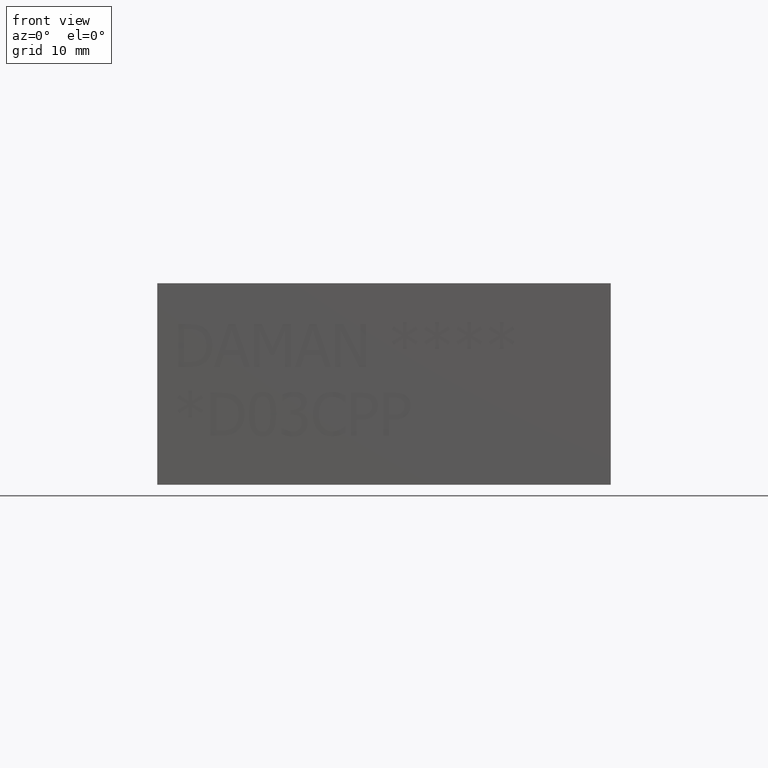
[diagram: clean part render]
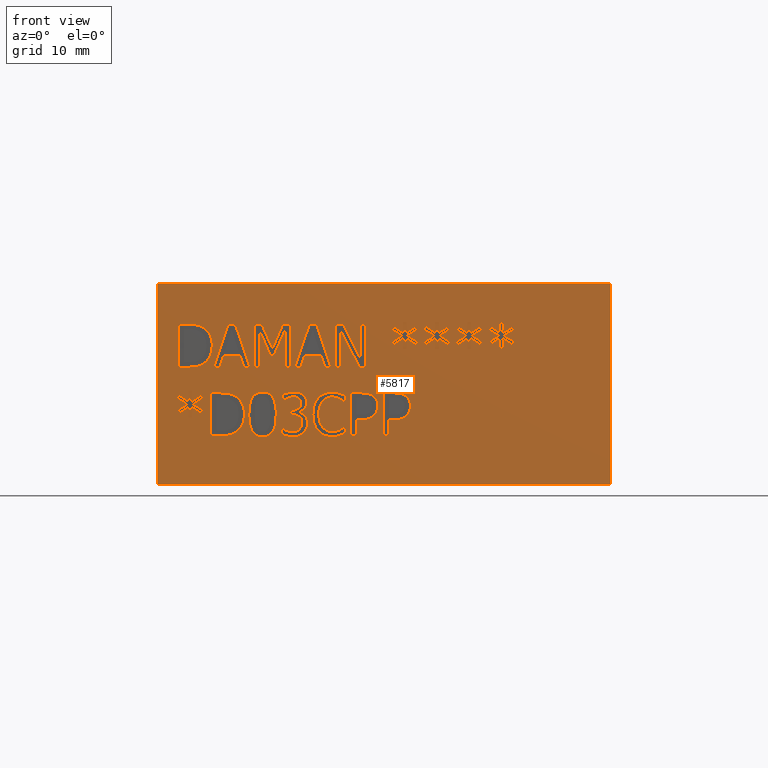
[diagram: same view with one face highlighted and labeled with its STEP entity id]
A machine part, front view. The second image highlights one B-rep face of the part: STEP entity #5817.
In plain terms, the highlighted planar face has unit normal (0, -1, 0).
Its self-contained STEP definition (entity closure, byte-faithful):
#60=FACE_BOUND('',#732,.T.);
#61=FACE_BOUND('',#733,.T.);
#62=FACE_BOUND('',#734,.T.);
#63=FACE_BOUND('',#735,.T.);
#64=FACE_BOUND('',#736,.T.);
#65=FACE_BOUND('',#737,.T.);
#66=FACE_BOUND('',#738,.T.);
#67=FACE_BOUND('',#739,.T.);
#68=FACE_BOUND('',#740,.T.);
#69=FACE_BOUND('',#741,.T.);
#70=FACE_BOUND('',#742,.T.);
#71=FACE_BOUND('',#743,.T.);
#72=FACE_BOUND('',#744,.T.);
#73=FACE_BOUND('',#745,.T.);
#74=FACE_BOUND('',#746,.T.);
#75=FACE_BOUND('',#747,.T.);
#151=PLANE('',#6057);
#430=FACE_OUTER_BOUND('',#731,.T.);
#731=EDGE_LOOP('',(#4320,#4321,#4322,#4323));
#732=EDGE_LOOP('',(#4324,#4325,#4326,#4327,#4328,#4329,#4330,#4331,#4332));
#733=EDGE_LOOP('',(#4333,#4334,#4335,#4336,#4337,#4338,#4339,#4340,#4341));
#734=EDGE_LOOP('',(#4342,#4343,#4344,#4345,#4346,#4347,#4348,#4349,#4350,
#4351,#4352,#4353,#4354,#4355,#4356,#4357,#4358,#4359,#4360,#4361,#4362,
#4363,#4364,#4365,#4366,#4367,#4368));
#735=EDGE_LOOP('',(#4369,#4370,#4371,#4372));
#736=EDGE_LOOP('',(#4373,#4374,#4375,#4376,#4377,#4378,#4379));
#737=EDGE_LOOP('',(#4380,#4381,#4382,#4383,#4384,#4385,#4386,#4387,#4388,
#4389,#4390,#4391,#4392,#4393,#4394,#4395,#4396,#4397));
#738=EDGE_LOOP('',(#4398,#4399,#4400,#4401,#4402,#4403,#4404,#4405,#4406,
#4407,#4408,#4409,#4410,#4411,#4412,#4413,#4414,#4415,#4416,#4417));
#739=EDGE_LOOP('',(#4418,#4419,#4420,#4421,#4422,#4423,#4424,#4425,#4426,
#4427,#4428,#4429,#4430,#4431,#4432,#4433,#4434,#4435));
#740=EDGE_LOOP('',(#4436,#4437,#4438,#4439,#4440,#4441,#4442,#4443,#4444,
#4445,#4446,#4447,#4448,#4449,#4450,#4451,#4452,#4453));
#741=EDGE_LOOP('',(#4454,#4455,#4456,#4457,#4458,#4459,#4460,#4461,#4462,
#4463));
#742=EDGE_LOOP('',(#4464,#4465,#4466,#4467,#4468,#4469,#4470,#4471));
#743=EDGE_LOOP('',(#4472,#4473,#4474,#4475,#4476,#4477,#4478));
#744=EDGE_LOOP('',(#4479,#4480,#4481,#4482,#4483,#4484,#4485,#4486));
#745=EDGE_LOOP('',(#4487,#4488,#4489,#4490,#4491,#4492,#4493,#4494,#4495,
#4496,#4497,#4498,#4499));
#746=EDGE_LOOP('',(#4500,#4501,#4502,#4503,#4504,#4505,#4506,#4507,#4508,
#4509,#4510,#4511,#4512,#4513,#4514,#4515,#4516,#4517));
#747=EDGE_LOOP('',(#4518,#4519,#4520,#4521,#4522,#4523,#4524,#4525,#4526,
#4527,#4528,#4529,#4530,#4531,#4532,#4533,#4534,#4535));
#946=LINE('',#7514,#1572);
#949=LINE('',#7520,#1575);
#952=LINE('',#7526,#1578);
#955=LINE('',#7532,#1581);
#958=LINE('',#7538,#1584);
#978=LINE('',#7715,#1604);
#981=LINE('',#7721,#1607);
#984=LINE('',#7727,#1610);
#987=LINE('',#7733,#1613);
#990=LINE('',#7739,#1616);
#998=LINE('',#7841,#1624);
#1001=LINE('',#7847,#1627);
#1004=LINE('',#7853,#1630);
#1012=LINE('',#7954,#1638);
#1015=LINE('',#7960,#1641);
#1023=LINE('',#8061,#1649);
#1030=LINE('',#8143,#1656);
#1033=LINE('',#8149,#1659);
#1065=LINE('',#8555,#1691);
#1068=LINE('',#8561,#1694);
#1071=LINE('',#8567,#1697);
#1075=LINE('',#8610,#1701);
#1079=LINE('',#8618,#1705);
#1082=LINE('',#8624,#1708);
#1085=LINE('',#8630,#1711);
#1088=LINE('',#8636,#1714);
#1091=LINE('',#8642,#1717);
#1094=LINE('',#8648,#1720);
#1097=LINE('',#8654,#1723);
#1100=LINE('',#8660,#1726);
#1103=LINE('',#8666,#1729);
#1106=LINE('',#8672,#1732);
#1109=LINE('',#8678,#1735);
#1112=LINE('',#8684,#1738);
#1115=LINE('',#8690,#1741);
#1118=LINE('',#8696,#1744);
#1121=LINE('',#8702,#1747);
#1124=LINE('',#8708,#1750);
#1127=LINE('',#8713,#1753);
#1132=LINE('',#8759,#1758);
#1135=LINE('',#8765,#1761);
#1146=LINE('',#8923,#1772);
#1149=LINE('',#8929,#1775);
#1157=LINE('',#9048,#1783);
#1158=LINE('',#9050,#1784);
#1159=LINE('',#9052,#1785);
#1160=LINE('',#9053,#1786);
#1161=LINE('',#9056,#1787);
#1162=LINE('',#9058,#1788);
#1163=LINE('',#9060,#1789);
#1164=LINE('',#9062,#1790);
#1165=LINE('',#9064,#1791);
#1166=LINE('',#9066,#1792);
#1167=LINE('',#9068,#1793);
#1168=LINE('',#9070,#1794);
#1169=LINE('',#9072,#1795);
#1170=LINE('',#9074,#1796);
#1171=LINE('',#9076,#1797);
#1172=LINE('',#9078,#1798);
#1173=LINE('',#9080,#1799);
#1174=LINE('',#9082,#1800);
#1175=LINE('',#9084,#1801);
#1176=LINE('',#9086,#1802);
#1177=LINE('',#9088,#1803);
#1178=LINE('',#9089,#1804);
#1179=LINE('',#9092,#1805);
#1180=LINE('',#9094,#1806);
#1181=LINE('',#9096,#1807);
#1182=LINE('',#9098,#1808);
#1183=LINE('',#9100,#1809);
#1184=LINE('',#9102,#1810);
#1185=LINE('',#9104,#1811);
#1186=LINE('',#9106,#1812);
#1187=LINE('',#9108,#1813);
#1188=LINE('',#9110,#1814);
#1189=LINE('',#9112,#1815);
#1190=LINE('',#9114,#1816);
#1191=LINE('',#9116,#1817);
#1192=LINE('',#9118,#1818);
#1193=LINE('',#9120,#1819);
#1194=LINE('',#9122,#1820);
#1195=LINE('',#9124,#1821);
#1196=LINE('',#9125,#1822);
#1197=LINE('',#9128,#1823);
#1198=LINE('',#9130,#1824);
#1199=LINE('',#9132,#1825);
#1200=LINE('',#9134,#1826);
#1201=LINE('',#9136,#1827);
#1202=LINE('',#9138,#1828);
#1203=LINE('',#9140,#1829);
#1204=LINE('',#9142,#1830);
#1205=LINE('',#9144,#1831);
#1206=LINE('',#9145,#1832);
#1207=LINE('',#9148,#1833);
#1208=LINE('',#9150,#1834);
#1209=LINE('',#9152,#1835);
#1210=LINE('',#9154,#1836);
#1211=LINE('',#9156,#1837);
#1212=LINE('',#9158,#1838);
#1213=LINE('',#9160,#1839);
#1214=LINE('',#9161,#1840);
#1215=LINE('',#9179,#1841);
#1216=LINE('',#9181,#1842);
#1217=LINE('',#9183,#1843);
#1218=LINE('',#9190,#1844);
#1219=LINE('',#9192,#1845);
#1220=LINE('',#9194,#1846);
#1221=LINE('',#9196,#1847);
#1222=LINE('',#9198,#1848);
#1223=LINE('',#9200,#1849);
#1224=LINE('',#9202,#1850);
#1225=LINE('',#9203,#1851);
#1226=LINE('',#9206,#1852);
#1227=LINE('',#9208,#1853);
#1228=LINE('',#9210,#1854);
#1229=LINE('',#9212,#1855);
#1230=LINE('',#9214,#1856);
#1231=LINE('',#9216,#1857);
#1232=LINE('',#9218,#1858);
#1233=LINE('',#9220,#1859);
#1234=LINE('',#9222,#1860);
#1235=LINE('',#9224,#1861);
#1236=LINE('',#9226,#1862);
#1237=LINE('',#9228,#1863);
#1238=LINE('',#9229,#1864);
#1239=LINE('',#9232,#1865);
#1240=LINE('',#9234,#1866);
#1241=LINE('',#9236,#1867);
#1242=LINE('',#9238,#1868);
#1243=LINE('',#9240,#1869);
#1244=LINE('',#9242,#1870);
#1245=LINE('',#9244,#1871);
#1246=LINE('',#9246,#1872);
#1247=LINE('',#9248,#1873);
#1248=LINE('',#9250,#1874);
#1249=LINE('',#9252,#1875);
#1250=LINE('',#9254,#1876);
#1251=LINE('',#9256,#1877);
#1252=LINE('',#9258,#1878);
#1253=LINE('',#9260,#1879);
#1254=LINE('',#9262,#1880);
#1255=LINE('',#9264,#1881);
#1256=LINE('',#9265,#1882);
#1257=LINE('',#9268,#1883);
#1258=LINE('',#9270,#1884);
#1259=LINE('',#9272,#1885);
#1260=LINE('',#9274,#1886);
#1261=LINE('',#9276,#1887);
#1262=LINE('',#9278,#1888);
#1263=LINE('',#9280,#1889);
#1264=LINE('',#9282,#1890);
#1265=LINE('',#9284,#1891);
#1266=LINE('',#9286,#1892);
#1267=LINE('',#9288,#1893);
#1268=LINE('',#9290,#1894);
#1269=LINE('',#9292,#1895);
#1270=LINE('',#9294,#1896);
#1271=LINE('',#9296,#1897);
#1272=LINE('',#9298,#1898);
#1273=LINE('',#9300,#1899);
#1274=LINE('',#9301,#1900);
#1572=VECTOR('',#6274,10.);
#1575=VECTOR('',#6279,10.);
#1578=VECTOR('',#6284,10.);
#1581=VECTOR('',#6289,10.);
#1584=VECTOR('',#6294,10.);
#1604=VECTOR('',#6324,10.);
#1607=VECTOR('',#6329,10.);
#1610=VECTOR('',#6334,10.);
#1613=VECTOR('',#6339,10.);
#1616=VECTOR('',#6344,10.);
#1624=VECTOR('',#6356,10.);
#1627=VECTOR('',#6361,10.);
#1630=VECTOR('',#6366,10.);
#1638=VECTOR('',#6376,10.);
#1641=VECTOR('',#6381,10.);
#1649=VECTOR('',#6391,10.);
#1656=VECTOR('',#6400,10.);
#1659=VECTOR('',#6405,10.);
#1691=VECTOR('',#6449,10.);
#1694=VECTOR('',#6454,10.);
#1697=VECTOR('',#6459,10.);
#1701=VECTOR('',#6467,10.);
#1705=VECTOR('',#6473,10.);
#1708=VECTOR('',#6478,10.);
#1711=VECTOR('',#6483,10.);
#1714=VECTOR('',#6488,10.);
#1717=VECTOR('',#6493,10.);
#1720=VECTOR('',#6498,10.);
#1723=VECTOR('',#6503,10.);
#1726=VECTOR('',#6508,10.);
#1729=VECTOR('',#6513,10.);
#1732=VECTOR('',#6518,10.);
#1735=VECTOR('',#6523,10.);
#1738=VECTOR('',#6528,10.);
#1741=VECTOR('',#6533,10.);
#1744=VECTOR('',#6538,10.);
#1747=VECTOR('',#6543,10.);
#1750=VECTOR('',#6548,10.);
#1753=VECTOR('',#6553,10.);
#1758=VECTOR('',#6562,10.);
#1761=VECTOR('',#6567,10.);
#1772=VECTOR('',#6580,10.);
#1775=VECTOR('',#6585,10.);
#1783=VECTOR('',#6597,10.);
#1784=VECTOR('',#6598,10.);
#1785=VECTOR('',#6599,10.);
#1786=VECTOR('',#6600,10.);
#1787=VECTOR('',#6601,10.);
#1788=VECTOR('',#6602,10.);
#1789=VECTOR('',#6603,10.);
#1790=VECTOR('',#6604,10.);
#1791=VECTOR('',#6605,10.);
#1792=VECTOR('',#6606,10.);
#1793=VECTOR('',#6607,10.);
#1794=VECTOR('',#6608,10.);
#1795=VECTOR('',#6609,10.);
#1796=VECTOR('',#6610,10.);
#1797=VECTOR('',#6611,10.);
#1798=VECTOR('',#6612,10.);
#1799=VECTOR('',#6613,10.);
#1800=VECTOR('',#6614,10.);
#1801=VECTOR('',#6615,10.);
#1802=VECTOR('',#6616,10.);
#1803=VECTOR('',#6617,10.);
#1804=VECTOR('',#6618,10.);
#1805=VECTOR('',#6619,10.);
#1806=VECTOR('',#6620,10.);
#1807=VECTOR('',#6621,10.);
#1808=VECTOR('',#6622,10.);
#1809=VECTOR('',#6623,10.);
#1810=VECTOR('',#6624,10.);
#1811=VECTOR('',#6625,10.);
#1812=VECTOR('',#6626,10.);
#1813=VECTOR('',#6627,10.);
#1814=VECTOR('',#6628,10.);
#1815=VECTOR('',#6629,10.);
#1816=VECTOR('',#6630,10.);
#1817=VECTOR('',#6631,10.);
#1818=VECTOR('',#6632,10.);
#1819=VECTOR('',#6633,10.);
#1820=VECTOR('',#6634,10.);
#1821=VECTOR('',#6635,10.);
#1822=VECTOR('',#6636,10.);
#1823=VECTOR('',#6637,10.);
#1824=VECTOR('',#6638,10.);
#1825=VECTOR('',#6639,10.);
#1826=VECTOR('',#6640,10.);
#1827=VECTOR('',#6641,10.);
#1828=VECTOR('',#6642,10.);
#1829=VECTOR('',#6643,10.);
#1830=VECTOR('',#6644,10.);
#1831=VECTOR('',#6645,10.);
#1832=VECTOR('',#6646,10.);
#1833=VECTOR('',#6647,10.);
#1834=VECTOR('',#6648,10.);
#1835=VECTOR('',#6649,10.);
#1836=VECTOR('',#6650,10.);
#1837=VECTOR('',#6651,10.);
#1838=VECTOR('',#6652,10.);
#1839=VECTOR('',#6653,10.);
#1840=VECTOR('',#6654,10.);
#1841=VECTOR('',#6655,10.);
#1842=VECTOR('',#6656,10.);
#1843=VECTOR('',#6657,10.);
#1844=VECTOR('',#6658,10.);
#1845=VECTOR('',#6659,10.);
#1846=VECTOR('',#6660,10.);
#1847=VECTOR('',#6661,10.);
#1848=VECTOR('',#6662,10.);
#1849=VECTOR('',#6663,10.);
#1850=VECTOR('',#6664,10.);
#1851=VECTOR('',#6665,10.);
#1852=VECTOR('',#6666,10.);
#1853=VECTOR('',#6667,10.);
#1854=VECTOR('',#6668,10.);
#1855=VECTOR('',#6669,10.);
#1856=VECTOR('',#6670,10.);
#1857=VECTOR('',#6671,10.);
#1858=VECTOR('',#6672,10.);
#1859=VECTOR('',#6673,10.);
#1860=VECTOR('',#6674,10.);
#1861=VECTOR('',#6675,10.);
#1862=VECTOR('',#6676,10.);
#1863=VECTOR('',#6677,10.);
#1864=VECTOR('',#6678,10.);
#1865=VECTOR('',#6679,10.);
#1866=VECTOR('',#6680,10.);
#1867=VECTOR('',#6681,10.);
#1868=VECTOR('',#6682,10.);
#1869=VECTOR('',#6683,10.);
#1870=VECTOR('',#6684,10.);
#1871=VECTOR('',#6685,10.);
#1872=VECTOR('',#6686,10.);
#1873=VECTOR('',#6687,10.);
#1874=VECTOR('',#6688,10.);
#1875=VECTOR('',#6689,10.);
#1876=VECTOR('',#6690,10.);
#1877=VECTOR('',#6691,10.);
#1878=VECTOR('',#6692,10.);
#1879=VECTOR('',#6693,10.);
#1880=VECTOR('',#6694,10.);
#1881=VECTOR('',#6695,10.);
#1882=VECTOR('',#6696,10.);
#1883=VECTOR('',#6697,10.);
#1884=VECTOR('',#6698,10.);
#1885=VECTOR('',#6699,10.);
#1886=VECTOR('',#6700,10.);
#1887=VECTOR('',#6701,10.);
#1888=VECTOR('',#6702,10.);
#1889=VECTOR('',#6703,10.);
#1890=VECTOR('',#6704,10.);
#1891=VECTOR('',#6705,10.);
#1892=VECTOR('',#6706,10.);
#1893=VECTOR('',#6707,10.);
#1894=VECTOR('',#6708,10.);
#1895=VECTOR('',#6709,10.);
#1896=VECTOR('',#6710,10.);
#1897=VECTOR('',#6711,10.);
#1898=VECTOR('',#6712,10.);
#1899=VECTOR('',#6713,10.);
#1900=VECTOR('',#6714,10.);
#2190=B_SPLINE_CURVE_WITH_KNOTS('',2,(#7481,#7482,#7483,#7484),
 .UNSPECIFIED.,.F.,.F.,(3,1,3),(0.,1.,2.),.UNSPECIFIED.);
#2192=B_SPLINE_CURVE_WITH_KNOTS('',2,(#7502,#7503,#7504,#7505),
 .UNSPECIFIED.,.F.,.F.,(3,1,3),(0.,1.,2.),.UNSPECIFIED.);
#2194=B_SPLINE_CURVE_WITH_KNOTS('',2,(#7551,#7552,#7553,#7554),
 .UNSPECIFIED.,.F.,.F.,(3,1,3),(0.,1.,2.),.UNSPECIFIED.);
#2196=B_SPLINE_CURVE_WITH_KNOTS('',2,(#7569,#7570,#7571,#7572),
 .UNSPECIFIED.,.F.,.F.,(3,1,3),(0.,1.,2.),.UNSPECIFIED.);
#2206=B_SPLINE_CURVE_WITH_KNOTS('',2,(#7682,#7683,#7684,#7685),
 .UNSPECIFIED.,.F.,.F.,(3,1,3),(0.,1.,2.),.UNSPECIFIED.);
#2208=B_SPLINE_CURVE_WITH_KNOTS('',2,(#7703,#7704,#7705,#7706),
 .UNSPECIFIED.,.F.,.F.,(3,1,3),(0.,1.,2.),.UNSPECIFIED.);
#2210=B_SPLINE_CURVE_WITH_KNOTS('',2,(#7752,#7753,#7754,#7755),
 .UNSPECIFIED.,.F.,.F.,(3,1,3),(0.,1.,2.),.UNSPECIFIED.);
#2212=B_SPLINE_CURVE_WITH_KNOTS('',2,(#7770,#7771,#7772,#7773),
 .UNSPECIFIED.,.F.,.F.,(3,1,3),(0.,1.,2.),.UNSPECIFIED.);
#2214=B_SPLINE_CURVE_WITH_KNOTS('',2,(#7789,#7790,#7791,#7792),
 .UNSPECIFIED.,.F.,.F.,(3,1,3),(0.,1.,2.),.UNSPECIFIED.);
#2216=B_SPLINE_CURVE_WITH_KNOTS('',2,(#7810,#7811,#7812,#7813),
 .UNSPECIFIED.,.F.,.F.,(3,1,3),(0.,1.,2.),.UNSPECIFIED.);
#2218=B_SPLINE_CURVE_WITH_KNOTS('',2,(#7829,#7830,#7831,#7832),
 .UNSPECIFIED.,.F.,.F.,(3,1,3),(0.,1.,2.),.UNSPECIFIED.);
#2220=B_SPLINE_CURVE_WITH_KNOTS('',2,(#7866,#7867,#7868,#7869),
 .UNSPECIFIED.,.F.,.F.,(3,1,3),(0.,1.,2.),.UNSPECIFIED.);
#2222=B_SPLINE_CURVE_WITH_KNOTS('',2,(#7885,#7886,#7887,#7888),
 .UNSPECIFIED.,.F.,.F.,(3,1,3),(0.,1.,2.),.UNSPECIFIED.);
#2224=B_SPLINE_CURVE_WITH_KNOTS('',2,(#7904,#7905,#7906,#7907),
 .UNSPECIFIED.,.F.,.F.,(3,1,3),(0.,1.,2.),.UNSPECIFIED.);
#2226=B_SPLINE_CURVE_WITH_KNOTS('',2,(#7923,#7924,#7925,#7926),
 .UNSPECIFIED.,.F.,.F.,(3,1,3),(0.,1.,2.),.UNSPECIFIED.);
#2228=B_SPLINE_CURVE_WITH_KNOTS('',2,(#7942,#7943,#7944,#7945),
 .UNSPECIFIED.,.F.,.F.,(3,1,3),(0.,1.,2.),.UNSPECIFIED.);
#2230=B_SPLINE_CURVE_WITH_KNOTS('',2,(#7973,#7974,#7975,#7976),
 .UNSPECIFIED.,.F.,.F.,(3,1,3),(0.,1.,2.),.UNSPECIFIED.);
#2232=B_SPLINE_CURVE_WITH_KNOTS('',2,(#7992,#7993,#7994,#7995),
 .UNSPECIFIED.,.F.,.F.,(3,1,3),(0.,1.,2.),.UNSPECIFIED.);
#2234=B_SPLINE_CURVE_WITH_KNOTS('',2,(#8011,#8012,#8013,#8014),
 .UNSPECIFIED.,.F.,.F.,(3,1,3),(0.,1.,2.),.UNSPECIFIED.);
#2236=B_SPLINE_CURVE_WITH_KNOTS('',2,(#8030,#8031,#8032,#8033),
 .UNSPECIFIED.,.F.,.F.,(3,1,3),(0.,1.,2.),.UNSPECIFIED.);
#2238=B_SPLINE_CURVE_WITH_KNOTS('',2,(#8049,#8050,#8051,#8052),
 .UNSPECIFIED.,.F.,.F.,(3,1,3),(0.,1.,2.),.UNSPECIFIED.);
#2240=B_SPLINE_CURVE_WITH_KNOTS('',2,(#8074,#8075,#8076,#8077),
 .UNSPECIFIED.,.F.,.F.,(3,1,3),(0.,1.,2.),.UNSPECIFIED.);
#2242=B_SPLINE_CURVE_WITH_KNOTS('',2,(#8093,#8094,#8095,#8096),
 .UNSPECIFIED.,.F.,.F.,(3,1,3),(0.,1.,2.),.UNSPECIFIED.);
#2244=B_SPLINE_CURVE_WITH_KNOTS('',2,(#8112,#8113,#8114,#8115),
 .UNSPECIFIED.,.F.,.F.,(3,1,3),(0.,1.,2.),.UNSPECIFIED.);
#2246=B_SPLINE_CURVE_WITH_KNOTS('',2,(#8131,#8132,#8133,#8134),
 .UNSPECIFIED.,.F.,.F.,(3,1,3),(0.,1.,2.),.UNSPECIFIED.);
#2248=B_SPLINE_CURVE_WITH_KNOTS('',2,(#8162,#8163,#8164,#8165),
 .UNSPECIFIED.,.F.,.F.,(3,1,3),(0.,1.,2.),.UNSPECIFIED.);
#2250=B_SPLINE_CURVE_WITH_KNOTS('',2,(#8180,#8181,#8182,#8183),
 .UNSPECIFIED.,.F.,.F.,(3,1,3),(0.,1.,2.),.UNSPECIFIED.);
#2268=B_SPLINE_CURVE_WITH_KNOTS('',2,(#8351,#8352,#8353,#8354),
 .UNSPECIFIED.,.F.,.F.,(3,1,3),(0.,1.,2.),.UNSPECIFIED.);
#2270=B_SPLINE_CURVE_WITH_KNOTS('',2,(#8372,#8373,#8374,#8375),
 .UNSPECIFIED.,.F.,.F.,(3,1,3),(0.,1.,2.),.UNSPECIFIED.);
#2272=B_SPLINE_CURVE_WITH_KNOTS('',2,(#8391,#8392,#8393,#8394),
 .UNSPECIFIED.,.F.,.F.,(3,1,3),(0.,1.,2.),.UNSPECIFIED.);
#2274=B_SPLINE_CURVE_WITH_KNOTS('',2,(#8409,#8410,#8411,#8412),
 .UNSPECIFIED.,.F.,.F.,(3,1,3),(0.,1.,2.),.UNSPECIFIED.);
#2284=B_SPLINE_CURVE_WITH_KNOTS('',2,(#8522,#8523,#8524,#8525),
 .UNSPECIFIED.,.F.,.F.,(3,1,3),(0.,1.,2.),.UNSPECIFIED.);
#2286=B_SPLINE_CURVE_WITH_KNOTS('',2,(#8543,#8544,#8545,#8546),
 .UNSPECIFIED.,.F.,.F.,(3,1,3),(0.,1.,2.),.UNSPECIFIED.);
#2288=B_SPLINE_CURVE_WITH_KNOTS('',2,(#8580,#8581,#8582,#8583),
 .UNSPECIFIED.,.F.,.F.,(3,1,3),(0.,1.,2.),.UNSPECIFIED.);
#2290=B_SPLINE_CURVE_WITH_KNOTS('',2,(#8598,#8599,#8600,#8601),
 .UNSPECIFIED.,.F.,.F.,(3,1,3),(0.,1.,2.),.UNSPECIFIED.);
#2292=B_SPLINE_CURVE_WITH_KNOTS('',2,(#8726,#8727,#8728,#8729),
 .UNSPECIFIED.,.F.,.F.,(3,1,3),(0.,1.,2.),.UNSPECIFIED.);
#2294=B_SPLINE_CURVE_WITH_KNOTS('',2,(#8747,#8748,#8749,#8750),
 .UNSPECIFIED.,.F.,.F.,(3,1,3),(0.,1.,2.),.UNSPECIFIED.);
#2296=B_SPLINE_CURVE_WITH_KNOTS('',2,(#8778,#8779,#8780,#8781),
 .UNSPECIFIED.,.F.,.F.,(3,1,3),(0.,1.,2.),.UNSPECIFIED.);
#2298=B_SPLINE_CURVE_WITH_KNOTS('',2,(#8797,#8798,#8799,#8800),
 .UNSPECIFIED.,.F.,.F.,(3,1,3),(0.,1.,2.),.UNSPECIFIED.);
#2300=B_SPLINE_CURVE_WITH_KNOTS('',2,(#8816,#8817,#8818,#8819),
 .UNSPECIFIED.,.F.,.F.,(3,1,3),(0.,1.,2.),.UNSPECIFIED.);
#2302=B_SPLINE_CURVE_WITH_KNOTS('',2,(#8835,#8836,#8837,#8838),
 .UNSPECIFIED.,.F.,.F.,(3,1,3),(0.,1.,2.),.UNSPECIFIED.);
#2304=B_SPLINE_CURVE_WITH_KNOTS('',2,(#8854,#8855,#8856,#8857),
 .UNSPECIFIED.,.F.,.F.,(3,1,3),(0.,1.,2.),.UNSPECIFIED.);
#2306=B_SPLINE_CURVE_WITH_KNOTS('',2,(#8873,#8874,#8875,#8876),
 .UNSPECIFIED.,.F.,.F.,(3,1,3),(0.,1.,2.),.UNSPECIFIED.);
#2308=B_SPLINE_CURVE_WITH_KNOTS('',2,(#8892,#8893,#8894,#8895),
 .UNSPECIFIED.,.F.,.F.,(3,1,3),(0.,1.,2.),.UNSPECIFIED.);
#2310=B_SPLINE_CURVE_WITH_KNOTS('',2,(#8911,#8912,#8913,#8914),
 .UNSPECIFIED.,.F.,.F.,(3,1,3),(0.,1.,2.),.UNSPECIFIED.);
#2312=B_SPLINE_CURVE_WITH_KNOTS('',2,(#8942,#8943,#8944,#8945),
 .UNSPECIFIED.,.F.,.F.,(3,1,3),(0.,1.,2.),.UNSPECIFIED.);
#2314=B_SPLINE_CURVE_WITH_KNOTS('',2,(#8961,#8962,#8963,#8964),
 .UNSPECIFIED.,.F.,.F.,(3,1,3),(0.,1.,2.),.UNSPECIFIED.);
#2316=B_SPLINE_CURVE_WITH_KNOTS('',2,(#8980,#8981,#8982,#8983),
 .UNSPECIFIED.,.F.,.F.,(3,1,3),(0.,1.,2.),.UNSPECIFIED.);
#2318=B_SPLINE_CURVE_WITH_KNOTS('',2,(#8999,#9000,#9001,#9002),
 .UNSPECIFIED.,.F.,.F.,(3,1,3),(0.,1.,2.),.UNSPECIFIED.);
#2320=B_SPLINE_CURVE_WITH_KNOTS('',2,(#9018,#9019,#9020,#9021),
 .UNSPECIFIED.,.F.,.F.,(3,1,3),(0.,1.,2.),.UNSPECIFIED.);
#2322=B_SPLINE_CURVE_WITH_KNOTS('',2,(#9036,#9037,#9038,#9039),
 .UNSPECIFIED.,.F.,.F.,(3,1,3),(0.,1.,2.),.UNSPECIFIED.);
#2324=B_SPLINE_CURVE_WITH_KNOTS('',2,(#9164,#9165,#9166,#9167),
 .UNSPECIFIED.,.F.,.F.,(3,1,3),(0.,1.,2.),.UNSPECIFIED.);
#2325=B_SPLINE_CURVE_WITH_KNOTS('',2,(#9169,#9170,#9171,#9172),
 .UNSPECIFIED.,.F.,.F.,(3,1,3),(0.,1.,2.),.UNSPECIFIED.);
#2326=B_SPLINE_CURVE_WITH_KNOTS('',2,(#9174,#9175,#9176,#9177),
 .UNSPECIFIED.,.F.,.F.,(3,1,3),(0.,1.,2.),.UNSPECIFIED.);
#2327=B_SPLINE_CURVE_WITH_KNOTS('',2,(#9184,#9185,#9186,#9187),
 .UNSPECIFIED.,.F.,.F.,(3,1,3),(0.,1.,2.),.UNSPECIFIED.);
#2354=VERTEX_POINT('',#7479);
#2355=VERTEX_POINT('',#7480);
#2358=VERTEX_POINT('',#7501);
#2360=VERTEX_POINT('',#7513);
#2362=VERTEX_POINT('',#7519);
#2364=VERTEX_POINT('',#7525);
#2366=VERTEX_POINT('',#7531);
#2368=VERTEX_POINT('',#7537);
#2370=VERTEX_POINT('',#7550);
#2386=VERTEX_POINT('',#7680);
#2387=VERTEX_POINT('',#7681);
#2390=VERTEX_POINT('',#7702);
#2392=VERTEX_POINT('',#7714);
#2394=VERTEX_POINT('',#7720);
#2396=VERTEX_POINT('',#7726);
#2398=VERTEX_POINT('',#7732);
#2400=VERTEX_POINT('',#7738);
#2402=VERTEX_POINT('',#7751);
#2404=VERTEX_POINT('',#7787);
#2405=VERTEX_POINT('',#7788);
#2408=VERTEX_POINT('',#7809);
#2410=VERTEX_POINT('',#7828);
#2412=VERTEX_POINT('',#7840);
#2414=VERTEX_POINT('',#7846);
#2416=VERTEX_POINT('',#7852);
#2418=VERTEX_POINT('',#7865);
#2420=VERTEX_POINT('',#7884);
#2422=VERTEX_POINT('',#7903);
#2424=VERTEX_POINT('',#7922);
#2426=VERTEX_POINT('',#7941);
#2428=VERTEX_POINT('',#7953);
#2430=VERTEX_POINT('',#7959);
#2432=VERTEX_POINT('',#7972);
#2434=VERTEX_POINT('',#7991);
#2436=VERTEX_POINT('',#8010);
#2438=VERTEX_POINT('',#8029);
#2440=VERTEX_POINT('',#8048);
#2442=VERTEX_POINT('',#8060);
#2444=VERTEX_POINT('',#8073);
#2446=VERTEX_POINT('',#8092);
#2448=VERTEX_POINT('',#8111);
#2450=VERTEX_POINT('',#8130);
#2452=VERTEX_POINT('',#8142);
#2454=VERTEX_POINT('',#8148);
#2456=VERTEX_POINT('',#8161);
#2474=VERTEX_POINT('',#8349);
#2475=VERTEX_POINT('',#8350);
#2478=VERTEX_POINT('',#8371);
#2480=VERTEX_POINT('',#8390);
#2496=VERTEX_POINT('',#8520);
#2497=VERTEX_POINT('',#8521);
#2500=VERTEX_POINT('',#8542);
#2502=VERTEX_POINT('',#8554);
#2504=VERTEX_POINT('',#8560);
#2506=VERTEX_POINT('',#8566);
#2508=VERTEX_POINT('',#8579);
#2510=VERTEX_POINT('',#8608);
#2511=VERTEX_POINT('',#8609);
#2514=VERTEX_POINT('',#8617);
#2516=VERTEX_POINT('',#8623);
#2518=VERTEX_POINT('',#8629);
#2520=VERTEX_POINT('',#8635);
#2522=VERTEX_POINT('',#8641);
#2524=VERTEX_POINT('',#8647);
#2526=VERTEX_POINT('',#8653);
#2528=VERTEX_POINT('',#8659);
#2530=VERTEX_POINT('',#8665);
#2532=VERTEX_POINT('',#8671);
#2534=VERTEX_POINT('',#8677);
#2536=VERTEX_POINT('',#8683);
#2538=VERTEX_POINT('',#8689);
#2540=VERTEX_POINT('',#8695);
#2542=VERTEX_POINT('',#8701);
#2544=VERTEX_POINT('',#8707);
#2546=VERTEX_POINT('',#8724);
#2547=VERTEX_POINT('',#8725);
#2550=VERTEX_POINT('',#8746);
#2552=VERTEX_POINT('',#8758);
#2554=VERTEX_POINT('',#8764);
#2556=VERTEX_POINT('',#8777);
#2558=VERTEX_POINT('',#8796);
#2560=VERTEX_POINT('',#8815);
#2562=VERTEX_POINT('',#8834);
#2564=VERTEX_POINT('',#8853);
#2566=VERTEX_POINT('',#8872);
#2568=VERTEX_POINT('',#8891);
#2570=VERTEX_POINT('',#8910);
#2572=VERTEX_POINT('',#8922);
#2574=VERTEX_POINT('',#8928);
#2576=VERTEX_POINT('',#8941);
#2578=VERTEX_POINT('',#8960);
#2580=VERTEX_POINT('',#8979);
#2582=VERTEX_POINT('',#8998);
#2584=VERTEX_POINT('',#9017);
#2586=VERTEX_POINT('',#9046);
#2587=VERTEX_POINT('',#9047);
#2588=VERTEX_POINT('',#9049);
#2589=VERTEX_POINT('',#9051);
#2590=VERTEX_POINT('',#9054);
#2591=VERTEX_POINT('',#9055);
#2592=VERTEX_POINT('',#9057);
#2593=VERTEX_POINT('',#9059);
#2594=VERTEX_POINT('',#9061);
#2595=VERTEX_POINT('',#9063);
#2596=VERTEX_POINT('',#9065);
#2597=VERTEX_POINT('',#9067);
#2598=VERTEX_POINT('',#9069);
#2599=VERTEX_POINT('',#9071);
#2600=VERTEX_POINT('',#9073);
#2601=VERTEX_POINT('',#9075);
#2602=VERTEX_POINT('',#9077);
#2603=VERTEX_POINT('',#9079);
#2604=VERTEX_POINT('',#9081);
#2605=VERTEX_POINT('',#9083);
#2606=VERTEX_POINT('',#9085);
#2607=VERTEX_POINT('',#9087);
#2608=VERTEX_POINT('',#9090);
#2609=VERTEX_POINT('',#9091);
#2610=VERTEX_POINT('',#9093);
#2611=VERTEX_POINT('',#9095);
#2612=VERTEX_POINT('',#9097);
#2613=VERTEX_POINT('',#9099);
#2614=VERTEX_POINT('',#9101);
#2615=VERTEX_POINT('',#9103);
#2616=VERTEX_POINT('',#9105);
#2617=VERTEX_POINT('',#9107);
#2618=VERTEX_POINT('',#9109);
#2619=VERTEX_POINT('',#9111);
#2620=VERTEX_POINT('',#9113);
#2621=VERTEX_POINT('',#9115);
#2622=VERTEX_POINT('',#9117);
#2623=VERTEX_POINT('',#9119);
#2624=VERTEX_POINT('',#9121);
#2625=VERTEX_POINT('',#9123);
#2626=VERTEX_POINT('',#9126);
#2627=VERTEX_POINT('',#9127);
#2628=VERTEX_POINT('',#9129);
#2629=VERTEX_POINT('',#9131);
#2630=VERTEX_POINT('',#9133);
#2631=VERTEX_POINT('',#9135);
#2632=VERTEX_POINT('',#9137);
#2633=VERTEX_POINT('',#9139);
#2634=VERTEX_POINT('',#9141);
#2635=VERTEX_POINT('',#9143);
#2636=VERTEX_POINT('',#9146);
#2637=VERTEX_POINT('',#9147);
#2638=VERTEX_POINT('',#9149);
#2639=VERTEX_POINT('',#9151);
#2640=VERTEX_POINT('',#9153);
#2641=VERTEX_POINT('',#9155);
#2642=VERTEX_POINT('',#9157);
#2643=VERTEX_POINT('',#9159);
#2644=VERTEX_POINT('',#9162);
#2645=VERTEX_POINT('',#9163);
#2646=VERTEX_POINT('',#9168);
#2647=VERTEX_POINT('',#9173);
#2648=VERTEX_POINT('',#9178);
#2649=VERTEX_POINT('',#9180);
#2650=VERTEX_POINT('',#9182);
#2651=VERTEX_POINT('',#9188);
#2652=VERTEX_POINT('',#9189);
#2653=VERTEX_POINT('',#9191);
#2654=VERTEX_POINT('',#9193);
#2655=VERTEX_POINT('',#9195);
#2656=VERTEX_POINT('',#9197);
#2657=VERTEX_POINT('',#9199);
#2658=VERTEX_POINT('',#9201);
#2659=VERTEX_POINT('',#9204);
#2660=VERTEX_POINT('',#9205);
#2661=VERTEX_POINT('',#9207);
#2662=VERTEX_POINT('',#9209);
#2663=VERTEX_POINT('',#9211);
#2664=VERTEX_POINT('',#9213);
#2665=VERTEX_POINT('',#9215);
#2666=VERTEX_POINT('',#9217);
#2667=VERTEX_POINT('',#9219);
#2668=VERTEX_POINT('',#9221);
#2669=VERTEX_POINT('',#9223);
#2670=VERTEX_POINT('',#9225);
#2671=VERTEX_POINT('',#9227);
#2672=VERTEX_POINT('',#9230);
#2673=VERTEX_POINT('',#9231);
#2674=VERTEX_POINT('',#9233);
#2675=VERTEX_POINT('',#9235);
#2676=VERTEX_POINT('',#9237);
#2677=VERTEX_POINT('',#9239);
#2678=VERTEX_POINT('',#9241);
#2679=VERTEX_POINT('',#9243);
#2680=VERTEX_POINT('',#9245);
#2681=VERTEX_POINT('',#9247);
#2682=VERTEX_POINT('',#9249);
#2683=VERTEX_POINT('',#9251);
#2684=VERTEX_POINT('',#9253);
#2685=VERTEX_POINT('',#9255);
#2686=VERTEX_POINT('',#9257);
#2687=VERTEX_POINT('',#9259);
#2688=VERTEX_POINT('',#9261);
#2689=VERTEX_POINT('',#9263);
#2690=VERTEX_POINT('',#9266);
#2691=VERTEX_POINT('',#9267);
#2692=VERTEX_POINT('',#9269);
#2693=VERTEX_POINT('',#9271);
#2694=VERTEX_POINT('',#9273);
#2695=VERTEX_POINT('',#9275);
#2696=VERTEX_POINT('',#9277);
#2697=VERTEX_POINT('',#9279);
#2698=VERTEX_POINT('',#9281);
#2699=VERTEX_POINT('',#9283);
#2700=VERTEX_POINT('',#9285);
#2701=VERTEX_POINT('',#9287);
#2702=VERTEX_POINT('',#9289);
#2703=VERTEX_POINT('',#9291);
#2704=VERTEX_POINT('',#9293);
#2705=VERTEX_POINT('',#9295);
#2706=VERTEX_POINT('',#9297);
#2707=VERTEX_POINT('',#9299);
#2910=EDGE_CURVE('',#2354,#2355,#2190,.T.);
#2914=EDGE_CURVE('',#2358,#2354,#2192,.T.);
#2917=EDGE_CURVE('',#2360,#2358,#946,.T.);
#2920=EDGE_CURVE('',#2362,#2360,#949,.T.);
#2923=EDGE_CURVE('',#2364,#2362,#952,.T.);
#2926=EDGE_CURVE('',#2366,#2364,#955,.T.);
#2929=EDGE_CURVE('',#2368,#2366,#958,.T.);
#2932=EDGE_CURVE('',#2370,#2368,#2194,.T.);
#2935=EDGE_CURVE('',#2355,#2370,#2196,.T.);
#2958=EDGE_CURVE('',#2386,#2387,#2206,.T.);
#2962=EDGE_CURVE('',#2390,#2386,#2208,.T.);
#2965=EDGE_CURVE('',#2392,#2390,#978,.T.);
#2968=EDGE_CURVE('',#2394,#2392,#981,.T.);
#2971=EDGE_CURVE('',#2396,#2394,#984,.T.);
#2974=EDGE_CURVE('',#2398,#2396,#987,.T.);
#2977=EDGE_CURVE('',#2400,#2398,#990,.T.);
#2980=EDGE_CURVE('',#2402,#2400,#2210,.T.);
#2983=EDGE_CURVE('',#2387,#2402,#2212,.T.);
#2985=EDGE_CURVE('',#2404,#2405,#2214,.T.);
#2989=EDGE_CURVE('',#2408,#2404,#2216,.T.);
#2992=EDGE_CURVE('',#2410,#2408,#2218,.T.);
#2995=EDGE_CURVE('',#2412,#2410,#998,.T.);
#2998=EDGE_CURVE('',#2414,#2412,#1001,.T.);
#3001=EDGE_CURVE('',#2416,#2414,#1004,.T.);
#3004=EDGE_CURVE('',#2418,#2416,#2220,.T.);
#3007=EDGE_CURVE('',#2420,#2418,#2222,.T.);
#3010=EDGE_CURVE('',#2422,#2420,#2224,.T.);
#3013=EDGE_CURVE('',#2424,#2422,#2226,.T.);
#3016=EDGE_CURVE('',#2426,#2424,#2228,.T.);
#3019=EDGE_CURVE('',#2428,#2426,#1012,.T.);
#3022=EDGE_CURVE('',#2430,#2428,#1015,.T.);
#3025=EDGE_CURVE('',#2432,#2430,#2230,.T.);
#3028=EDGE_CURVE('',#2434,#2432,#2232,.T.);
#3031=EDGE_CURVE('',#2436,#2434,#2234,.T.);
#3034=EDGE_CURVE('',#2438,#2436,#2236,.T.);
#3037=EDGE_CURVE('',#2440,#2438,#2238,.T.);
#3040=EDGE_CURVE('',#2442,#2440,#1023,.T.);
#3043=EDGE_CURVE('',#2444,#2442,#2240,.T.);
#3046=EDGE_CURVE('',#2446,#2444,#2242,.T.);
#3049=EDGE_CURVE('',#2448,#2446,#2244,.T.);
#3052=EDGE_CURVE('',#2450,#2448,#2246,.T.);
#3055=EDGE_CURVE('',#2452,#2450,#1030,.T.);
#3058=EDGE_CURVE('',#2454,#2452,#1033,.T.);
#3061=EDGE_CURVE('',#2456,#2454,#2248,.T.);
#3064=EDGE_CURVE('',#2405,#2456,#2250,.T.);
#3090=EDGE_CURVE('',#2474,#2475,#2268,.T.);
#3094=EDGE_CURVE('',#2478,#2474,#2270,.T.);
#3097=EDGE_CURVE('',#2480,#2478,#2272,.T.);
#3100=EDGE_CURVE('',#2475,#2480,#2274,.T.);
#3123=EDGE_CURVE('',#2496,#2497,#2284,.T.);
#3127=EDGE_CURVE('',#2500,#2496,#2286,.T.);
#3130=EDGE_CURVE('',#2502,#2500,#1065,.T.);
#3133=EDGE_CURVE('',#2504,#2502,#1068,.T.);
#3136=EDGE_CURVE('',#2506,#2504,#1071,.T.);
#3139=EDGE_CURVE('',#2508,#2506,#2288,.T.);
#3142=EDGE_CURVE('',#2497,#2508,#2290,.T.);
#3144=EDGE_CURVE('',#2510,#2511,#1075,.T.);
#3148=EDGE_CURVE('',#2514,#2510,#1079,.T.);
#3151=EDGE_CURVE('',#2516,#2514,#1082,.T.);
#3154=EDGE_CURVE('',#2518,#2516,#1085,.T.);
#3157=EDGE_CURVE('',#2520,#2518,#1088,.T.);
#3160=EDGE_CURVE('',#2522,#2520,#1091,.T.);
#3163=EDGE_CURVE('',#2524,#2522,#1094,.T.);
#3166=EDGE_CURVE('',#2526,#2524,#1097,.T.);
#3169=EDGE_CURVE('',#2528,#2526,#1100,.T.);
#3172=EDGE_CURVE('',#2530,#2528,#1103,.T.);
#3175=EDGE_CURVE('',#2532,#2530,#1106,.T.);
#3178=EDGE_CURVE('',#2534,#2532,#1109,.T.);
#3181=EDGE_CURVE('',#2536,#2534,#1112,.T.);
#3184=EDGE_CURVE('',#2538,#2536,#1115,.T.);
#3187=EDGE_CURVE('',#2540,#2538,#1118,.T.);
#3190=EDGE_CURVE('',#2542,#2540,#1121,.T.);
#3193=EDGE_CURVE('',#2544,#2542,#1124,.T.);
#3196=EDGE_CURVE('',#2511,#2544,#1127,.T.);
#3198=EDGE_CURVE('',#2546,#2547,#2292,.T.);
#3202=EDGE_CURVE('',#2550,#2546,#2294,.T.);
#3205=EDGE_CURVE('',#2552,#2550,#1132,.T.);
#3208=EDGE_CURVE('',#2554,#2552,#1135,.T.);
#3211=EDGE_CURVE('',#2556,#2554,#2296,.T.);
#3214=EDGE_CURVE('',#2558,#2556,#2298,.T.);
#3217=EDGE_CURVE('',#2560,#2558,#2300,.T.);
#3220=EDGE_CURVE('',#2562,#2560,#2302,.T.);
#3223=EDGE_CURVE('',#2564,#2562,#2304,.T.);
#3226=EDGE_CURVE('',#2566,#2564,#2306,.T.);
#3229=EDGE_CURVE('',#2568,#2566,#2308,.T.);
#3232=EDGE_CURVE('',#2570,#2568,#2310,.T.);
#3235=EDGE_CURVE('',#2572,#2570,#1146,.T.);
#3238=EDGE_CURVE('',#2574,#2572,#1149,.T.);
#3241=EDGE_CURVE('',#2576,#2574,#2312,.T.);
#3244=EDGE_CURVE('',#2578,#2576,#2314,.T.);
#3247=EDGE_CURVE('',#2580,#2578,#2316,.T.);
#3250=EDGE_CURVE('',#2582,#2580,#2318,.T.);
#3253=EDGE_CURVE('',#2584,#2582,#2320,.T.);
#3256=EDGE_CURVE('',#2547,#2584,#2322,.T.);
#3258=EDGE_CURVE('',#2586,#2587,#1157,.T.);
#3259=EDGE_CURVE('',#2587,#2588,#1158,.T.);
#3260=EDGE_CURVE('',#2589,#2588,#1159,.T.);
#3261=EDGE_CURVE('',#2586,#2589,#1160,.T.);
#3262=EDGE_CURVE('',#2590,#2591,#1161,.T.);
#3263=EDGE_CURVE('',#2591,#2592,#1162,.T.);
#3264=EDGE_CURVE('',#2592,#2593,#1163,.T.);
#3265=EDGE_CURVE('',#2593,#2594,#1164,.T.);
#3266=EDGE_CURVE('',#2594,#2595,#1165,.T.);
#3267=EDGE_CURVE('',#2595,#2596,#1166,.T.);
#3268=EDGE_CURVE('',#2596,#2597,#1167,.T.);
#3269=EDGE_CURVE('',#2597,#2598,#1168,.T.);
#3270=EDGE_CURVE('',#2598,#2599,#1169,.T.);
#3271=EDGE_CURVE('',#2599,#2600,#1170,.T.);
#3272=EDGE_CURVE('',#2600,#2601,#1171,.T.);
#3273=EDGE_CURVE('',#2601,#2602,#1172,.T.);
#3274=EDGE_CURVE('',#2602,#2603,#1173,.T.);
#3275=EDGE_CURVE('',#2603,#2604,#1174,.T.);
#3276=EDGE_CURVE('',#2604,#2605,#1175,.T.);
#3277=EDGE_CURVE('',#2605,#2606,#1176,.T.);
#3278=EDGE_CURVE('',#2606,#2607,#1177,.T.);
#3279=EDGE_CURVE('',#2607,#2590,#1178,.T.);
#3280=EDGE_CURVE('',#2608,#2609,#1179,.T.);
#3281=EDGE_CURVE('',#2609,#2610,#1180,.T.);
#3282=EDGE_CURVE('',#2610,#2611,#1181,.T.);
#3283=EDGE_CURVE('',#2611,#2612,#1182,.T.);
#3284=EDGE_CURVE('',#2612,#2613,#1183,.T.);
#3285=EDGE_CURVE('',#2613,#2614,#1184,.T.);
#3286=EDGE_CURVE('',#2614,#2615,#1185,.T.);
#3287=EDGE_CURVE('',#2615,#2616,#1186,.T.);
#3288=EDGE_CURVE('',#2616,#2617,#1187,.T.);
#3289=EDGE_CURVE('',#2617,#2618,#1188,.T.);
#3290=EDGE_CURVE('',#2618,#2619,#1189,.T.);
#3291=EDGE_CURVE('',#2619,#2620,#1190,.T.);
#3292=EDGE_CURVE('',#2620,#2621,#1191,.T.);
#3293=EDGE_CURVE('',#2621,#2622,#1192,.T.);
#3294=EDGE_CURVE('',#2622,#2623,#1193,.T.);
#3295=EDGE_CURVE('',#2623,#2624,#1194,.T.);
#3296=EDGE_CURVE('',#2624,#2625,#1195,.T.);
#3297=EDGE_CURVE('',#2625,#2608,#1196,.T.);
#3298=EDGE_CURVE('',#2626,#2627,#1197,.T.);
#3299=EDGE_CURVE('',#2627,#2628,#1198,.T.);
#3300=EDGE_CURVE('',#2628,#2629,#1199,.T.);
#3301=EDGE_CURVE('',#2629,#2630,#1200,.T.);
#3302=EDGE_CURVE('',#2630,#2631,#1201,.T.);
#3303=EDGE_CURVE('',#2631,#2632,#1202,.T.);
#3304=EDGE_CURVE('',#2632,#2633,#1203,.T.);
#3305=EDGE_CURVE('',#2633,#2634,#1204,.T.);
#3306=EDGE_CURVE('',#2634,#2635,#1205,.T.);
#3307=EDGE_CURVE('',#2635,#2626,#1206,.T.);
#3308=EDGE_CURVE('',#2636,#2637,#1207,.T.);
#3309=EDGE_CURVE('',#2637,#2638,#1208,.T.);
#3310=EDGE_CURVE('',#2638,#2639,#1209,.T.);
#3311=EDGE_CURVE('',#2639,#2640,#1210,.T.);
#3312=EDGE_CURVE('',#2640,#2641,#1211,.T.);
#3313=EDGE_CURVE('',#2641,#2642,#1212,.T.);
#3314=EDGE_CURVE('',#2642,#2643,#1213,.T.);
#3315=EDGE_CURVE('',#2643,#2636,#1214,.T.);
#3316=EDGE_CURVE('',#2644,#2645,#2324,.T.);
#3317=EDGE_CURVE('',#2645,#2646,#2325,.T.);
#3318=EDGE_CURVE('',#2646,#2647,#2326,.T.);
#3319=EDGE_CURVE('',#2647,#2648,#1215,.T.);
#3320=EDGE_CURVE('',#2648,#2649,#1216,.T.);
#3321=EDGE_CURVE('',#2649,#2650,#1217,.T.);
#3322=EDGE_CURVE('',#2650,#2644,#2327,.T.);
#3323=EDGE_CURVE('',#2651,#2652,#1218,.T.);
#3324=EDGE_CURVE('',#2652,#2653,#1219,.T.);
#3325=EDGE_CURVE('',#2653,#2654,#1220,.T.);
#3326=EDGE_CURVE('',#2654,#2655,#1221,.T.);
#3327=EDGE_CURVE('',#2655,#2656,#1222,.T.);
#3328=EDGE_CURVE('',#2656,#2657,#1223,.T.);
#3329=EDGE_CURVE('',#2657,#2658,#1224,.T.);
#3330=EDGE_CURVE('',#2658,#2651,#1225,.T.);
#3331=EDGE_CURVE('',#2659,#2660,#1226,.T.);
#3332=EDGE_CURVE('',#2660,#2661,#1227,.T.);
#3333=EDGE_CURVE('',#2661,#2662,#1228,.T.);
#3334=EDGE_CURVE('',#2662,#2663,#1229,.T.);
#3335=EDGE_CURVE('',#2663,#2664,#1230,.T.);
#3336=EDGE_CURVE('',#2664,#2665,#1231,.T.);
#3337=EDGE_CURVE('',#2665,#2666,#1232,.T.);
#3338=EDGE_CURVE('',#2666,#2667,#1233,.T.);
#3339=EDGE_CURVE('',#2667,#2668,#1234,.T.);
#3340=EDGE_CURVE('',#2668,#2669,#1235,.T.);
#3341=EDGE_CURVE('',#2669,#2670,#1236,.T.);
#3342=EDGE_CURVE('',#2670,#2671,#1237,.T.);
#3343=EDGE_CURVE('',#2671,#2659,#1238,.T.);
#3344=EDGE_CURVE('',#2672,#2673,#1239,.T.);
#3345=EDGE_CURVE('',#2673,#2674,#1240,.T.);
#3346=EDGE_CURVE('',#2674,#2675,#1241,.T.);
#3347=EDGE_CURVE('',#2675,#2676,#1242,.T.);
#3348=EDGE_CURVE('',#2676,#2677,#1243,.T.);
#3349=EDGE_CURVE('',#2677,#2678,#1244,.T.);
#3350=EDGE_CURVE('',#2678,#2679,#1245,.T.);
#3351=EDGE_CURVE('',#2679,#2680,#1246,.T.);
#3352=EDGE_CURVE('',#2680,#2681,#1247,.T.);
#3353=EDGE_CURVE('',#2681,#2682,#1248,.T.);
#3354=EDGE_CURVE('',#2682,#2683,#1249,.T.);
#3355=EDGE_CURVE('',#2683,#2684,#1250,.T.);
#3356=EDGE_CURVE('',#2684,#2685,#1251,.T.);
#3357=EDGE_CURVE('',#2685,#2686,#1252,.T.);
#3358=EDGE_CURVE('',#2686,#2687,#1253,.T.);
#3359=EDGE_CURVE('',#2687,#2688,#1254,.T.);
#3360=EDGE_CURVE('',#2688,#2689,#1255,.T.);
#3361=EDGE_CURVE('',#2689,#2672,#1256,.T.);
#3362=EDGE_CURVE('',#2690,#2691,#1257,.T.);
#3363=EDGE_CURVE('',#2691,#2692,#1258,.T.);
#3364=EDGE_CURVE('',#2692,#2693,#1259,.T.);
#3365=EDGE_CURVE('',#2693,#2694,#1260,.T.);
#3366=EDGE_CURVE('',#2694,#2695,#1261,.T.);
#3367=EDGE_CURVE('',#2695,#2696,#1262,.T.);
#3368=EDGE_CURVE('',#2696,#2697,#1263,.T.);
#3369=EDGE_CURVE('',#2697,#2698,#1264,.T.);
#3370=EDGE_CURVE('',#2698,#2699,#1265,.T.);
#3371=EDGE_CURVE('',#2699,#2700,#1266,.T.);
#3372=EDGE_CURVE('',#2700,#2701,#1267,.T.);
#3373=EDGE_CURVE('',#2701,#2702,#1268,.T.);
#3374=EDGE_CURVE('',#2702,#2703,#1269,.T.);
#3375=EDGE_CURVE('',#2703,#2704,#1270,.T.);
#3376=EDGE_CURVE('',#2704,#2705,#1271,.T.);
#3377=EDGE_CURVE('',#2705,#2706,#1272,.T.);
#3378=EDGE_CURVE('',#2706,#2707,#1273,.T.);
#3379=EDGE_CURVE('',#2707,#2690,#1274,.T.);
#4320=ORIENTED_EDGE('',*,*,#3258,.T.);
#4321=ORIENTED_EDGE('',*,*,#3259,.T.);
#4322=ORIENTED_EDGE('',*,*,#3260,.F.);
#4323=ORIENTED_EDGE('',*,*,#3261,.F.);
#4324=ORIENTED_EDGE('',*,*,#2910,.T.);
#4325=ORIENTED_EDGE('',*,*,#2935,.T.);
#4326=ORIENTED_EDGE('',*,*,#2932,.T.);
#4327=ORIENTED_EDGE('',*,*,#2929,.T.);
#4328=ORIENTED_EDGE('',*,*,#2926,.T.);
#4329=ORIENTED_EDGE('',*,*,#2923,.T.);
#4330=ORIENTED_EDGE('',*,*,#2920,.T.);
#4331=ORIENTED_EDGE('',*,*,#2917,.T.);
#4332=ORIENTED_EDGE('',*,*,#2914,.T.);
#4333=ORIENTED_EDGE('',*,*,#2958,.T.);
#4334=ORIENTED_EDGE('',*,*,#2983,.T.);
#4335=ORIENTED_EDGE('',*,*,#2980,.T.);
#4336=ORIENTED_EDGE('',*,*,#2977,.T.);
#4337=ORIENTED_EDGE('',*,*,#2974,.T.);
#4338=ORIENTED_EDGE('',*,*,#2971,.T.);
#4339=ORIENTED_EDGE('',*,*,#2968,.T.);
#4340=ORIENTED_EDGE('',*,*,#2965,.T.);
#4341=ORIENTED_EDGE('',*,*,#2962,.T.);
#4342=ORIENTED_EDGE('',*,*,#2985,.T.);
#4343=ORIENTED_EDGE('',*,*,#3064,.T.);
#4344=ORIENTED_EDGE('',*,*,#3061,.T.);
#4345=ORIENTED_EDGE('',*,*,#3058,.T.);
#4346=ORIENTED_EDGE('',*,*,#3055,.T.);
#4347=ORIENTED_EDGE('',*,*,#3052,.T.);
#4348=ORIENTED_EDGE('',*,*,#3049,.T.);
#4349=ORIENTED_EDGE('',*,*,#3046,.T.);
#4350=ORIENTED_EDGE('',*,*,#3043,.T.);
#4351=ORIENTED_EDGE('',*,*,#3040,.T.);
#4352=ORIENTED_EDGE('',*,*,#3037,.T.);
#4353=ORIENTED_EDGE('',*,*,#3034,.T.);
#4354=ORIENTED_EDGE('',*,*,#3031,.T.);
#4355=ORIENTED_EDGE('',*,*,#3028,.T.);
#4356=ORIENTED_EDGE('',*,*,#3025,.T.);
#4357=ORIENTED_EDGE('',*,*,#3022,.T.);
#4358=ORIENTED_EDGE('',*,*,#3019,.T.);
#4359=ORIENTED_EDGE('',*,*,#3016,.T.);
#4360=ORIENTED_EDGE('',*,*,#3013,.T.);
#4361=ORIENTED_EDGE('',*,*,#3010,.T.);
#4362=ORIENTED_EDGE('',*,*,#3007,.T.);
#4363=ORIENTED_EDGE('',*,*,#3004,.T.);
#4364=ORIENTED_EDGE('',*,*,#3001,.T.);
#4365=ORIENTED_EDGE('',*,*,#2998,.T.);
#4366=ORIENTED_EDGE('',*,*,#2995,.T.);
#4367=ORIENTED_EDGE('',*,*,#2992,.T.);
#4368=ORIENTED_EDGE('',*,*,#2989,.T.);
#4369=ORIENTED_EDGE('',*,*,#3090,.T.);
#4370=ORIENTED_EDGE('',*,*,#3100,.T.);
#4371=ORIENTED_EDGE('',*,*,#3097,.T.);
#4372=ORIENTED_EDGE('',*,*,#3094,.T.);
#4373=ORIENTED_EDGE('',*,*,#3123,.T.);
#4374=ORIENTED_EDGE('',*,*,#3142,.T.);
#4375=ORIENTED_EDGE('',*,*,#3139,.T.);
#4376=ORIENTED_EDGE('',*,*,#3136,.T.);
#4377=ORIENTED_EDGE('',*,*,#3133,.T.);
#4378=ORIENTED_EDGE('',*,*,#3130,.T.);
#4379=ORIENTED_EDGE('',*,*,#3127,.T.);
#4380=ORIENTED_EDGE('',*,*,#3144,.T.);
#4381=ORIENTED_EDGE('',*,*,#3196,.T.);
#4382=ORIENTED_EDGE('',*,*,#3193,.T.);
#4383=ORIENTED_EDGE('',*,*,#3190,.T.);
#4384=ORIENTED_EDGE('',*,*,#3187,.T.);
#4385=ORIENTED_EDGE('',*,*,#3184,.T.);
#4386=ORIENTED_EDGE('',*,*,#3181,.T.);
#4387=ORIENTED_EDGE('',*,*,#3178,.T.);
#4388=ORIENTED_EDGE('',*,*,#3175,.T.);
#4389=ORIENTED_EDGE('',*,*,#3172,.T.);
#4390=ORIENTED_EDGE('',*,*,#3169,.T.);
#4391=ORIENTED_EDGE('',*,*,#3166,.T.);
#4392=ORIENTED_EDGE('',*,*,#3163,.T.);
#4393=ORIENTED_EDGE('',*,*,#3160,.T.);
#4394=ORIENTED_EDGE('',*,*,#3157,.T.);
#4395=ORIENTED_EDGE('',*,*,#3154,.T.);
#4396=ORIENTED_EDGE('',*,*,#3151,.T.);
#4397=ORIENTED_EDGE('',*,*,#3148,.T.);
#4398=ORIENTED_EDGE('',*,*,#3198,.T.);
#4399=ORIENTED_EDGE('',*,*,#3256,.T.);
#4400=ORIENTED_EDGE('',*,*,#3253,.T.);
#4401=ORIENTED_EDGE('',*,*,#3250,.T.);
#4402=ORIENTED_EDGE('',*,*,#3247,.T.);
#4403=ORIENTED_EDGE('',*,*,#3244,.T.);
#4404=ORIENTED_EDGE('',*,*,#3241,.T.);
#4405=ORIENTED_EDGE('',*,*,#3238,.T.);
#4406=ORIENTED_EDGE('',*,*,#3235,.T.);
#4407=ORIENTED_EDGE('',*,*,#3232,.T.);
#4408=ORIENTED_EDGE('',*,*,#3229,.T.);
#4409=ORIENTED_EDGE('',*,*,#3226,.T.);
#4410=ORIENTED_EDGE('',*,*,#3223,.T.);
#4411=ORIENTED_EDGE('',*,*,#3220,.T.);
#4412=ORIENTED_EDGE('',*,*,#3217,.T.);
#4413=ORIENTED_EDGE('',*,*,#3214,.T.);
#4414=ORIENTED_EDGE('',*,*,#3211,.T.);
#4415=ORIENTED_EDGE('',*,*,#3208,.T.);
#4416=ORIENTED_EDGE('',*,*,#3205,.T.);
#4417=ORIENTED_EDGE('',*,*,#3202,.T.);
#4418=ORIENTED_EDGE('',*,*,#3262,.T.);
#4419=ORIENTED_EDGE('',*,*,#3263,.T.);
#4420=ORIENTED_EDGE('',*,*,#3264,.T.);
#4421=ORIENTED_EDGE('',*,*,#3265,.T.);
#4422=ORIENTED_EDGE('',*,*,#3266,.T.);
#4423=ORIENTED_EDGE('',*,*,#3267,.T.);
#4424=ORIENTED_EDGE('',*,*,#3268,.T.);
#4425=ORIENTED_EDGE('',*,*,#3269,.T.);
#4426=ORIENTED_EDGE('',*,*,#3270,.T.);
#4427=ORIENTED_EDGE('',*,*,#3271,.T.);
#4428=ORIENTED_EDGE('',*,*,#3272,.T.);
#4429=ORIENTED_EDGE('',*,*,#3273,.T.);
#4430=ORIENTED_EDGE('',*,*,#3274,.T.);
#4431=ORIENTED_EDGE('',*,*,#3275,.T.);
#4432=ORIENTED_EDGE('',*,*,#3276,.T.);
#4433=ORIENTED_EDGE('',*,*,#3277,.T.);
#4434=ORIENTED_EDGE('',*,*,#3278,.T.);
#4435=ORIENTED_EDGE('',*,*,#3279,.T.);
#4436=ORIENTED_EDGE('',*,*,#3280,.T.);
#4437=ORIENTED_EDGE('',*,*,#3281,.T.);
#4438=ORIENTED_EDGE('',*,*,#3282,.T.);
#4439=ORIENTED_EDGE('',*,*,#3283,.T.);
#4440=ORIENTED_EDGE('',*,*,#3284,.T.);
#4441=ORIENTED_EDGE('',*,*,#3285,.T.);
#4442=ORIENTED_EDGE('',*,*,#3286,.T.);
#4443=ORIENTED_EDGE('',*,*,#3287,.T.);
#4444=ORIENTED_EDGE('',*,*,#3288,.T.);
#4445=ORIENTED_EDGE('',*,*,#3289,.T.);
#4446=ORIENTED_EDGE('',*,*,#3290,.T.);
#4447=ORIENTED_EDGE('',*,*,#3291,.T.);
#4448=ORIENTED_EDGE('',*,*,#3292,.T.);
#4449=ORIENTED_EDGE('',*,*,#3293,.T.);
#4450=ORIENTED_EDGE('',*,*,#3294,.T.);
#4451=ORIENTED_EDGE('',*,*,#3295,.T.);
#4452=ORIENTED_EDGE('',*,*,#3296,.T.);
#4453=ORIENTED_EDGE('',*,*,#3297,.T.);
#4454=ORIENTED_EDGE('',*,*,#3298,.T.);
#4455=ORIENTED_EDGE('',*,*,#3299,.T.);
#4456=ORIENTED_EDGE('',*,*,#3300,.T.);
#4457=ORIENTED_EDGE('',*,*,#3301,.T.);
#4458=ORIENTED_EDGE('',*,*,#3302,.T.);
#4459=ORIENTED_EDGE('',*,*,#3303,.T.);
#4460=ORIENTED_EDGE('',*,*,#3304,.T.);
#4461=ORIENTED_EDGE('',*,*,#3305,.T.);
#4462=ORIENTED_EDGE('',*,*,#3306,.T.);
#4463=ORIENTED_EDGE('',*,*,#3307,.T.);
#4464=ORIENTED_EDGE('',*,*,#3308,.T.);
#4465=ORIENTED_EDGE('',*,*,#3309,.T.);
#4466=ORIENTED_EDGE('',*,*,#3310,.T.);
#4467=ORIENTED_EDGE('',*,*,#3311,.T.);
#4468=ORIENTED_EDGE('',*,*,#3312,.T.);
#4469=ORIENTED_EDGE('',*,*,#3313,.T.);
#4470=ORIENTED_EDGE('',*,*,#3314,.T.);
#4471=ORIENTED_EDGE('',*,*,#3315,.T.);
#4472=ORIENTED_EDGE('',*,*,#3316,.T.);
#4473=ORIENTED_EDGE('',*,*,#3317,.T.);
#4474=ORIENTED_EDGE('',*,*,#3318,.T.);
#4475=ORIENTED_EDGE('',*,*,#3319,.T.);
#4476=ORIENTED_EDGE('',*,*,#3320,.T.);
#4477=ORIENTED_EDGE('',*,*,#3321,.T.);
#4478=ORIENTED_EDGE('',*,*,#3322,.T.);
#4479=ORIENTED_EDGE('',*,*,#3323,.T.);
#4480=ORIENTED_EDGE('',*,*,#3324,.T.);
#4481=ORIENTED_EDGE('',*,*,#3325,.T.);
#4482=ORIENTED_EDGE('',*,*,#3326,.T.);
#4483=ORIENTED_EDGE('',*,*,#3327,.T.);
#4484=ORIENTED_EDGE('',*,*,#3328,.T.);
#4485=ORIENTED_EDGE('',*,*,#3329,.T.);
#4486=ORIENTED_EDGE('',*,*,#3330,.T.);
#4487=ORIENTED_EDGE('',*,*,#3331,.T.);
#4488=ORIENTED_EDGE('',*,*,#3332,.T.);
#4489=ORIENTED_EDGE('',*,*,#3333,.T.);
#4490=ORIENTED_EDGE('',*,*,#3334,.T.);
#4491=ORIENTED_EDGE('',*,*,#3335,.T.);
#4492=ORIENTED_EDGE('',*,*,#3336,.T.);
#4493=ORIENTED_EDGE('',*,*,#3337,.T.);
#4494=ORIENTED_EDGE('',*,*,#3338,.T.);
#4495=ORIENTED_EDGE('',*,*,#3339,.T.);
#4496=ORIENTED_EDGE('',*,*,#3340,.T.);
#4497=ORIENTED_EDGE('',*,*,#3341,.T.);
#4498=ORIENTED_EDGE('',*,*,#3342,.T.);
#4499=ORIENTED_EDGE('',*,*,#3343,.T.);
#4500=ORIENTED_EDGE('',*,*,#3344,.T.);
#4501=ORIENTED_EDGE('',*,*,#3345,.T.);
#4502=ORIENTED_EDGE('',*,*,#3346,.T.);
#4503=ORIENTED_EDGE('',*,*,#3347,.T.);
#4504=ORIENTED_EDGE('',*,*,#3348,.T.);
#4505=ORIENTED_EDGE('',*,*,#3349,.T.);
#4506=ORIENTED_EDGE('',*,*,#3350,.T.);
#4507=ORIENTED_EDGE('',*,*,#3351,.T.);
#4508=ORIENTED_EDGE('',*,*,#3352,.T.);
#4509=ORIENTED_EDGE('',*,*,#3353,.T.);
#4510=ORIENTED_EDGE('',*,*,#3354,.T.);
#4511=ORIENTED_EDGE('',*,*,#3355,.T.);
#4512=ORIENTED_EDGE('',*,*,#3356,.T.);
#4513=ORIENTED_EDGE('',*,*,#3357,.T.);
#4514=ORIENTED_EDGE('',*,*,#3358,.T.);
#4515=ORIENTED_EDGE('',*,*,#3359,.T.);
#4516=ORIENTED_EDGE('',*,*,#3360,.T.);
#4517=ORIENTED_EDGE('',*,*,#3361,.T.);
#4518=ORIENTED_EDGE('',*,*,#3362,.T.);
#4519=ORIENTED_EDGE('',*,*,#3363,.T.);
#4520=ORIENTED_EDGE('',*,*,#3364,.T.);
#4521=ORIENTED_EDGE('',*,*,#3365,.T.);
#4522=ORIENTED_EDGE('',*,*,#3366,.T.);
#4523=ORIENTED_EDGE('',*,*,#3367,.T.);
#4524=ORIENTED_EDGE('',*,*,#3368,.T.);
#4525=ORIENTED_EDGE('',*,*,#3369,.T.);
#4526=ORIENTED_EDGE('',*,*,#3370,.T.);
#4527=ORIENTED_EDGE('',*,*,#3371,.T.);
#4528=ORIENTED_EDGE('',*,*,#3372,.T.);
#4529=ORIENTED_EDGE('',*,*,#3373,.T.);
#4530=ORIENTED_EDGE('',*,*,#3374,.T.);
#4531=ORIENTED_EDGE('',*,*,#3375,.T.);
#4532=ORIENTED_EDGE('',*,*,#3376,.T.);
#4533=ORIENTED_EDGE('',*,*,#3377,.T.);
#4534=ORIENTED_EDGE('',*,*,#3378,.T.);
#4535=ORIENTED_EDGE('',*,*,#3379,.T.);
#5817=ADVANCED_FACE('',(#430,#60,#61,#62,#63,#64,#65,#66,#67,#68,#69,#70,
#71,#72,#73,#74,#75),#151,.T.);
#6057=AXIS2_PLACEMENT_3D('',#9045,#6595,#6596);
#6274=DIRECTION('',(1.,0.,0.));
#6279=DIRECTION('',(0.,0.,1.));
#6284=DIRECTION('',(-1.,0.,0.));
#6289=DIRECTION('',(0.,0.,-1.));
#6294=DIRECTION('',(-1.,0.,0.));
#6324=DIRECTION('',(1.,0.,0.));
#6329=DIRECTION('',(0.,0.,1.));
#6334=DIRECTION('',(-1.,0.,0.));
#6339=DIRECTION('',(0.,0.,-1.));
#6344=DIRECTION('',(-1.,0.,0.));
#6356=DIRECTION('',(1.,0.,0.));
#6361=DIRECTION('',(0.,0.,1.));
#6366=DIRECTION('',(-1.,0.,0.));
#6376=DIRECTION('',(1.,0.,0.));
#6381=DIRECTION('',(0.,0.,1.));
#6391=DIRECTION('',(0.,0.,-1.));
#6400=DIRECTION('',(0.,0.,1.));
#6405=DIRECTION('',(-1.,0.,0.));
#6449=DIRECTION('',(1.,0.,0.));
#6454=DIRECTION('',(0.,0.,1.));
#6459=DIRECTION('',(-1.,0.,0.));
#6467=DIRECTION('',(0.863671970566992,0.,-0.50405428998961));
#6473=DIRECTION('',(-0.86495430708312,0.,-0.501850621857101));
#6478=DIRECTION('',(0.510320389620597,0.,-0.859984360286559));
#6483=DIRECTION('',(0.833932205726539,0.,0.551866900848446));
#6488=DIRECTION('',(-0.0231725839648084,0.,-0.999731479624601));
#6493=DIRECTION('',(1.,0.,0.));
#6498=DIRECTION('',(-0.0198636297743478,0.,0.999802698642181));
#6503=DIRECTION('',(0.83062769207368,0.,-0.556828193575319));
#6508=DIRECTION('',(0.517259170391715,0.,0.855828809193565));
#6513=DIRECTION('',(-0.863671970566992,0.,0.50405428998961));
#6518=DIRECTION('',(0.862387849576918,0.,0.506248157430819));
#6523=DIRECTION('',(-0.517259170391715,0.,0.855828809193565));
#6528=DIRECTION('',(-0.829670163866863,0.,-0.558253902081421));
#6533=DIRECTION('',(0.0165540227281046,0.,0.999862972777529));
#6538=DIRECTION('',(-1.,0.,0.));
#6543=DIRECTION('',(0.0198636297743478,0.,-0.999802698642181));
#6548=DIRECTION('',(-0.832994863913619,0.,0.553280721418641));
#6553=DIRECTION('',(-0.510320389620597,0.,-0.859984360286559));
#6562=DIRECTION('',(0.,0.,-1.));
#6567=DIRECTION('',(1.,0.,0.));
#6580=DIRECTION('',(-1.,0.,0.));
#6585=DIRECTION('',(0.,0.,-1.));
#6595=DIRECTION('center_axis',(0.,-1.,0.));
#6596=DIRECTION('ref_axis',(1.,0.,0.));
#6597=DIRECTION('',(1.,0.,0.));
#6598=DIRECTION('',(0.,0.,1.));
#6599=DIRECTION('',(1.,0.,0.));
#6600=DIRECTION('',(0.,0.,1.));
#6601=DIRECTION('',(0.863671970566991,0.,-0.504054289989611));
#6602=DIRECTION('',(-0.51032038962059,0.,-0.859984360286563));
#6603=DIRECTION('',(-0.832994863913619,0.,0.553280721418641));
#6604=DIRECTION('',(0.0198636297743478,0.,-0.999802698642181));
#6605=DIRECTION('',(-1.,0.,0.));
#6606=DIRECTION('',(0.0165540227281046,0.,0.999862972777529));
#6607=DIRECTION('',(-0.829670163866863,0.,-0.558253902081421));
#6608=DIRECTION('',(-0.517259170391709,0.,0.855828809193568));
#6609=DIRECTION('',(0.862387849576917,0.,0.50624815743082));
#6610=DIRECTION('',(-0.863671970566991,0.,0.504054289989611));
#6611=DIRECTION('',(0.517259170391712,0.,0.855828809193566));
#6612=DIRECTION('',(0.83062769207368,0.,-0.556828193575318));
#6613=DIRECTION('',(-0.0198636297743478,0.,0.999802698642181));
#6614=DIRECTION('',(1.,0.,0.));
#6615=DIRECTION('',(-0.0231725839648084,0.,-0.999731479624601));
#6616=DIRECTION('',(0.833932205726541,0.,0.551866900848445));
#6617=DIRECTION('',(0.510320389620593,0.,-0.859984360286561));
#6618=DIRECTION('',(-0.86495430708312,0.,-0.501850621857102));
#6619=DIRECTION('',(0.863671970566991,0.,-0.504054289989611));
#6620=DIRECTION('',(-0.51032038962059,0.,-0.859984360286563));
#6621=DIRECTION('',(-0.832994863913619,0.,0.553280721418641));
#6622=DIRECTION('',(0.0198636297743478,0.,-0.999802698642181));
#6623=DIRECTION('',(-1.,0.,0.));
#6624=DIRECTION('',(0.0165540227281046,0.,0.999862972777529));
#6625=DIRECTION('',(-0.829670163866863,0.,-0.558253902081421));
#6626=DIRECTION('',(-0.517259170391709,0.,0.855828809193568));
#6627=DIRECTION('',(0.862387849576917,0.,0.50624815743082));
#6628=DIRECTION('',(-0.863671970566991,0.,0.504054289989611));
#6629=DIRECTION('',(0.517259170391712,0.,0.855828809193566));
#6630=DIRECTION('',(0.83062769207368,0.,-0.556828193575318));
#6631=DIRECTION('',(-0.0198636297743478,0.,0.999802698642181));
#6632=DIRECTION('',(1.,0.,0.));
#6633=DIRECTION('',(-0.0231725839648084,0.,-0.999731479624601));
#6634=DIRECTION('',(0.833932205726541,0.,0.551866900848445));
#6635=DIRECTION('',(0.510320389620593,0.,-0.859984360286561));
#6636=DIRECTION('',(-0.86495430708312,0.,-0.501850621857102));
#6637=DIRECTION('',(0.,0.,-1.));
#6638=DIRECTION('',(-1.,0.,0.));
#6639=DIRECTION('',(-0.456554296231786,0.,0.889695551631174));
#6640=DIRECTION('',(0.,0.,-1.));
#6641=DIRECTION('',(-1.,0.,0.));
#6642=DIRECTION('',(0.,0.,1.));
#6643=DIRECTION('',(1.,0.,0.));
#6644=DIRECTION('',(0.45340638691382,0.,-0.891303903450308));
#6645=DIRECTION('',(0.,0.,1.));
#6646=DIRECTION('',(1.,0.,0.));
#6647=DIRECTION('',(-1.,0.,0.));
#6648=DIRECTION('',(0.319451166674568,0.,0.947602739606771));
#6649=DIRECTION('',(1.,0.,0.));
#6650=DIRECTION('',(0.319451166674568,0.,-0.947602739606771));
#6651=DIRECTION('',(-1.,0.,0.));
#6652=DIRECTION('',(-0.30877436393838,0.,0.951135317488762));
#6653=DIRECTION('',(-1.,0.,0.));
#6654=DIRECTION('',(-0.30877436393838,0.,-0.951135317488762));
#6655=DIRECTION('',(-1.,0.,0.));
#6656=DIRECTION('',(0.,0.,1.));
#6657=DIRECTION('',(1.,0.,0.));
#6658=DIRECTION('',(-1.,0.,0.));
#6659=DIRECTION('',(0.319451166674568,0.,0.947602739606771));
#6660=DIRECTION('',(1.,0.,0.));
#6661=DIRECTION('',(0.319451166674568,0.,-0.947602739606771));
#6662=DIRECTION('',(-1.,0.,0.));
#6663=DIRECTION('',(-0.308774363938381,0.,0.951135317488762));
#6664=DIRECTION('',(-1.,0.,0.));
#6665=DIRECTION('',(-0.308774363938381,0.,-0.951135317488762));
#6666=DIRECTION('',(0.,0.,-1.));
#6667=DIRECTION('',(-1.,0.,0.));
#6668=DIRECTION('',(0.,0.,1.));
#6669=DIRECTION('',(-0.406841728378542,0.,-0.913498663408962));
#6670=DIRECTION('',(-1.,0.,0.));
#6671=DIRECTION('',(-0.403671360964849,0.,0.914904056356068));
#6672=DIRECTION('',(0.,0.,-1.));
#6673=DIRECTION('',(-1.,0.,0.));
#6674=DIRECTION('',(0.,0.,1.));
#6675=DIRECTION('',(1.,0.,0.));
#6676=DIRECTION('',(0.409094040958196,0.,-0.912492227721691));
#6677=DIRECTION('',(0.397944692264712,0.,0.917409408006231));
#6678=DIRECTION('',(1.,0.,0.));
#6679=DIRECTION('',(0.863671970566991,0.,-0.504054289989611));
#6680=DIRECTION('',(-0.51032038962059,0.,-0.859984360286563));
#6681=DIRECTION('',(-0.832994863913619,0.,0.553280721418641));
#6682=DIRECTION('',(0.0198636297743478,0.,-0.999802698642181));
#6683=DIRECTION('',(-1.,0.,0.));
#6684=DIRECTION('',(0.0165540227281046,0.,0.999862972777529));
#6685=DIRECTION('',(-0.829670163866863,0.,-0.558253902081421));
#6686=DIRECTION('',(-0.517259170391709,0.,0.855828809193568));
#6687=DIRECTION('',(0.862387849576917,0.,0.50624815743082));
#6688=DIRECTION('',(-0.863671970566991,0.,0.504054289989611));
#6689=DIRECTION('',(0.517259170391712,0.,0.855828809193566));
#6690=DIRECTION('',(0.83062769207368,0.,-0.556828193575318));
#6691=DIRECTION('',(-0.0198636297743478,0.,0.999802698642181));
#6692=DIRECTION('',(1.,0.,0.));
#6693=DIRECTION('',(-0.0231725839648084,0.,-0.999731479624601));
#6694=DIRECTION('',(0.833932205726541,0.,0.551866900848445));
#6695=DIRECTION('',(0.510320389620593,0.,-0.859984360286561));
#6696=DIRECTION('',(-0.86495430708312,0.,-0.501850621857102));
#6697=DIRECTION('',(0.863671970566991,0.,-0.504054289989611));
#6698=DIRECTION('',(-0.51032038962059,0.,-0.859984360286563));
#6699=DIRECTION('',(-0.832994863913619,0.,0.553280721418641));
#6700=DIRECTION('',(0.0198636297743478,0.,-0.999802698642181));
#6701=DIRECTION('',(-1.,0.,0.));
#6702=DIRECTION('',(0.0165540227281046,0.,0.999862972777529));
#6703=DIRECTION('',(-0.829670163866863,0.,-0.558253902081421));
#6704=DIRECTION('',(-0.517259170391709,0.,0.855828809193568));
#6705=DIRECTION('',(0.862387849576917,0.,0.50624815743082));
#6706=DIRECTION('',(-0.863671970566991,0.,0.504054289989611));
#6707=DIRECTION('',(0.517259170391712,0.,0.855828809193566));
#6708=DIRECTION('',(0.83062769207368,0.,-0.556828193575318));
#6709=DIRECTION('',(-0.0198636297743478,0.,0.999802698642181));
#6710=DIRECTION('',(1.,0.,0.));
#6711=DIRECTION('',(-0.0231725839648084,0.,-0.999731479624601));
#6712=DIRECTION('',(0.833932205726541,0.,0.551866900848445));
#6713=DIRECTION('',(0.510320389620593,0.,-0.859984360286561));
#6714=DIRECTION('',(-0.86495430708312,0.,-0.501850621857102));
#7479=CARTESIAN_POINT('',(23.4619632688682,0.,8.43628884575203));
#7480=CARTESIAN_POINT('',(23.9460864396787,0.,7.46474914922748));
#7481=CARTESIAN_POINT('Ctrl Pts',(23.4619632688682,0.,8.43628884575203));
#7482=CARTESIAN_POINT('Ctrl Pts',(23.6892047572078,0.,8.2815011652888));
#7483=CARTESIAN_POINT('Ctrl Pts',(23.9460864396787,0.,7.8039647042852));
#7484=CARTESIAN_POINT('Ctrl Pts',(23.9460864396787,0.,7.46474914922748));
#7501=CARTESIAN_POINT('',(22.3982096350463,0.,8.68987717331946));
#7502=CARTESIAN_POINT('Ctrl Pts',(22.3982096350463,0.,8.68987717331946));
#7503=CARTESIAN_POINT('Ctrl Pts',(22.7604786744284,0.,8.68987717331946));
#7504=CARTESIAN_POINT('Ctrl Pts',(23.2676553295632,0.,8.57131639679443));
#7505=CARTESIAN_POINT('Ctrl Pts',(23.4619632688682,0.,8.43628884575203));
#7513=CARTESIAN_POINT('',(21.3772696149697,0.,8.68987717331946));
#7514=CARTESIAN_POINT('',(10.6886348074848,0.,8.68987717331946));
#7519=CARTESIAN_POINT('',(21.3772696149697,0.,4.62587722243369));
#7520=CARTESIAN_POINT('',(21.3772696149697,0.,2.31293861121684));
#7525=CARTESIAN_POINT('',(21.9173798191393,0.,4.62587722243369));
#7526=CARTESIAN_POINT('',(10.9586899095696,0.,4.62587722243369));
#7531=CARTESIAN_POINT('',(21.9173798191393,0.,6.1408204780313));
#7532=CARTESIAN_POINT('',(21.9173798191393,0.,3.07041023901565));
#7537=CARTESIAN_POINT('',(22.375156150722,0.,6.1408204780313));
#7538=CARTESIAN_POINT('',(11.187578075361,0.,6.1408204780313));
#7550=CARTESIAN_POINT('',(23.5904041101036,0.,6.56236990567585));
#7551=CARTESIAN_POINT('Ctrl Pts',(23.5904041101036,0.,6.56236990567585));
#7552=CARTESIAN_POINT('Ctrl Pts',(23.3796293962813,0.,6.35488854675705));
#7553=CARTESIAN_POINT('Ctrl Pts',(22.8098789979805,0.,6.1408204780313));
#7554=CARTESIAN_POINT('Ctrl Pts',(22.375156150722,0.,6.1408204780313));
#7569=CARTESIAN_POINT('Ctrl Pts',(23.9460864396787,0.,7.46474914922748));
#7570=CARTESIAN_POINT('Ctrl Pts',(23.9460864396787,0.,7.20128075694963));
#7571=CARTESIAN_POINT('Ctrl Pts',(23.7583652101807,0.,6.72703765084951));
#7572=CARTESIAN_POINT('Ctrl Pts',(23.5904041101036,0.,6.56236990567585));
#7680=CARTESIAN_POINT('',(20.3793830792174,0.,8.43628884575203));
#7681=CARTESIAN_POINT('',(20.8635062500279,0.,7.46474914922748));
#7682=CARTESIAN_POINT('Ctrl Pts',(20.3793830792174,0.,8.43628884575203));
#7683=CARTESIAN_POINT('Ctrl Pts',(20.606624567557,0.,8.2815011652888));
#7684=CARTESIAN_POINT('Ctrl Pts',(20.8635062500279,0.,7.8039647042852));
#7685=CARTESIAN_POINT('Ctrl Pts',(20.8635062500279,0.,7.46474914922748));
#7702=CARTESIAN_POINT('',(19.3156294453956,0.,8.68987717331946));
#7703=CARTESIAN_POINT('Ctrl Pts',(19.3156294453956,0.,8.68987717331946));
#7704=CARTESIAN_POINT('Ctrl Pts',(19.6778984847776,0.,8.68987717331946));
#7705=CARTESIAN_POINT('Ctrl Pts',(20.1850751399124,0.,8.57131639679443));
#7706=CARTESIAN_POINT('Ctrl Pts',(20.3793830792174,0.,8.43628884575203));
#7714=CARTESIAN_POINT('',(18.2946894253189,0.,8.68987717331946));
#7715=CARTESIAN_POINT('',(9.14734471265945,0.,8.68987717331946));
#7720=CARTESIAN_POINT('',(18.2946894253189,0.,4.62587722243369));
#7721=CARTESIAN_POINT('',(18.2946894253189,0.,2.31293861121684));
#7726=CARTESIAN_POINT('',(18.8347996294885,0.,4.62587722243369));
#7727=CARTESIAN_POINT('',(9.41739981474424,0.,4.62587722243369));
#7732=CARTESIAN_POINT('',(18.8347996294885,0.,6.1408204780313));
#7733=CARTESIAN_POINT('',(18.8347996294885,0.,3.07041023901565));
#7738=CARTESIAN_POINT('',(19.2925759610712,0.,6.1408204780313));
#7739=CARTESIAN_POINT('',(9.64628798053562,0.,6.1408204780313));
#7751=CARTESIAN_POINT('',(20.5078239204528,0.,6.56236990567585));
#7752=CARTESIAN_POINT('Ctrl Pts',(20.5078239204528,0.,6.56236990567585));
#7753=CARTESIAN_POINT('Ctrl Pts',(20.2970492066305,0.,6.35488854675705));
#7754=CARTESIAN_POINT('Ctrl Pts',(19.7272988083297,0.,6.1408204780313));
#7755=CARTESIAN_POINT('Ctrl Pts',(19.2925759610712,0.,6.1408204780313));
#7770=CARTESIAN_POINT('Ctrl Pts',(20.8635062500279,0.,7.46474914922748));
#7771=CARTESIAN_POINT('Ctrl Pts',(20.8635062500279,0.,7.20128075694963));
#7772=CARTESIAN_POINT('Ctrl Pts',(20.6757850205299,0.,6.72703765084951));
#7773=CARTESIAN_POINT('Ctrl Pts',(20.5078239204528,0.,6.56236990567585));
#7787=CARTESIAN_POINT('',(13.3645371348197,0.,8.17940716328113));
#7788=CARTESIAN_POINT('',(12.8705338992987,0.,8.30455464961311));
#7789=CARTESIAN_POINT('Ctrl Pts',(13.3645371348197,0.,8.17940716328113));
#7790=CARTESIAN_POINT('Ctrl Pts',(13.262443132812,0.,8.24856761625407));
#7791=CARTESIAN_POINT('Ctrl Pts',(13.0121481601481,0.,8.30455464961311));
#7792=CARTESIAN_POINT('Ctrl Pts',(12.8705338992987,0.,8.30455464961311));
#7809=CARTESIAN_POINT('',(13.5786052035455,0.,7.73809760621574));
#7810=CARTESIAN_POINT('Ctrl Pts',(13.5786052035455,0.,7.73809760621574));
#7811=CARTESIAN_POINT('Ctrl Pts',(13.5786052035455,0.,7.89288528667898));
#7812=CARTESIAN_POINT('Ctrl Pts',(13.4600444270204,0.,8.11354006521167));
#7813=CARTESIAN_POINT('Ctrl Pts',(13.3645371348197,0.,8.17940716328113));
#7828=CARTESIAN_POINT('',(12.7519731227737,0.,7.05637314119681));
#7829=CARTESIAN_POINT('Ctrl Pts',(12.7519731227737,0.,7.05637314119681));
#7830=CARTESIAN_POINT('Ctrl Pts',(13.1175355170592,0.,7.05637314119681));
#7831=CARTESIAN_POINT('Ctrl Pts',(13.5786052035455,0.,7.40546876096496));
#7832=CARTESIAN_POINT('Ctrl Pts',(13.5786052035455,0.,7.73809760621574));
#7840=CARTESIAN_POINT('',(12.5708386030827,0.,7.05637314119681));
#7841=CARTESIAN_POINT('',(6.28541930154135,0.,7.05637314119681));
#7846=CARTESIAN_POINT('',(12.5708386030827,0.,6.605183519421));
#7847=CARTESIAN_POINT('',(12.5708386030827,0.,3.3025917597105));
#7852=CARTESIAN_POINT('',(12.8013734463258,0.,6.605183519421));
#7853=CARTESIAN_POINT('',(6.40068672316291,0.,6.605183519421));
#7865=CARTESIAN_POINT('',(13.4139374583718,0.,6.46027590366819));
#7866=CARTESIAN_POINT('Ctrl Pts',(13.4139374583718,0.,6.46027590366819));
#7867=CARTESIAN_POINT('Ctrl Pts',(13.2986700367502,0.,6.54260977625501));
#7868=CARTESIAN_POINT('Ctrl Pts',(12.9858013209203,0.,6.605183519421));
#7869=CARTESIAN_POINT('Ctrl Pts',(12.8013734463258,0.,6.605183519421));
#7884=CARTESIAN_POINT('',(13.6576457212288,0.,5.87076537594651));
#7885=CARTESIAN_POINT('Ctrl Pts',(13.6576457212288,0.,5.87076537594651));
#7886=CARTESIAN_POINT('Ctrl Pts',(13.6576457212288,0.,6.0914201544792));
#7887=CARTESIAN_POINT('Ctrl Pts',(13.5292048799934,0.,6.37794203108136));
#7888=CARTESIAN_POINT('Ctrl Pts',(13.4139374583718,0.,6.46027590366819));
#7903=CARTESIAN_POINT('',(13.4336975877926,0.,5.23844123447968));
#7904=CARTESIAN_POINT('Ctrl Pts',(13.4336975877926,0.,5.23844123447968));
#7905=CARTESIAN_POINT('Ctrl Pts',(13.5423782996073,0.,5.36029536590818));
#7906=CARTESIAN_POINT('Ctrl Pts',(13.6576457212288,0.,5.65011059741381));
#7907=CARTESIAN_POINT('Ctrl Pts',(13.6576457212288,0.,5.87076537594651));
#7922=CARTESIAN_POINT('',(12.8178402208432,0.,5.01119974614004));
#7923=CARTESIAN_POINT('Ctrl Pts',(12.8178402208432,0.,5.01119974614004));
#7924=CARTESIAN_POINT('Ctrl Pts',(12.9858013209203,0.,5.01119974614004));
#7925=CARTESIAN_POINT('Ctrl Pts',(13.3217235210746,0.,5.11658710305117));
#7926=CARTESIAN_POINT('Ctrl Pts',(13.4336975877926,0.,5.23844123447968));
#7941=CARTESIAN_POINT('',(11.7804334262492,0.,5.36688207571513));
#7942=CARTESIAN_POINT('Ctrl Pts',(11.7804334262492,0.,5.36688207571513));
#7943=CARTESIAN_POINT('Ctrl Pts',(11.9516878812298,0.,5.24173458938315));
#7944=CARTESIAN_POINT('Ctrl Pts',(12.531318344241,0.,5.01119974614004));
#7945=CARTESIAN_POINT('Ctrl Pts',(12.8178402208432,0.,5.01119974614004));
#7953=CARTESIAN_POINT('',(11.7409131674075,0.,5.36688207571513));
#7954=CARTESIAN_POINT('',(5.87045658370374,0.,5.36688207571513));
#7959=CARTESIAN_POINT('',(11.7409131674075,0.,4.79054496760734));
#7960=CARTESIAN_POINT('',(11.7409131674075,0.,2.39527248380367));
#7972=CARTESIAN_POINT('',(12.8507737698779,0.,4.54024999494339));
#7973=CARTESIAN_POINT('Ctrl Pts',(12.8507737698779,0.,4.54024999494339));
#7974=CARTESIAN_POINT('Ctrl Pts',(12.5444917638549,0.,4.54024999494339));
#7975=CARTESIAN_POINT('Ctrl Pts',(11.9451011714228,0.,4.68845096559968));
#7976=CARTESIAN_POINT('Ctrl Pts',(11.7409131674075,0.,4.79054496760734));
#7991=CARTESIAN_POINT('',(13.8519536605337,0.,4.91569245393932));
#7992=CARTESIAN_POINT('Ctrl Pts',(13.8519536605337,0.,4.91569245393932));
#7993=CARTESIAN_POINT('Ctrl Pts',(13.6741124957462,0.,4.73126457934483));
#7994=CARTESIAN_POINT('Ctrl Pts',(13.1702291955148,0.,4.54024999494339));
#7995=CARTESIAN_POINT('Ctrl Pts',(12.8507737698779,0.,4.54024999494339));
#8010=CARTESIAN_POINT('',(14.2109293450123,0.,5.83124511710483));
#8011=CARTESIAN_POINT('Ctrl Pts',(14.2109293450123,0.,5.83124511710483));
#8012=CARTESIAN_POINT('Ctrl Pts',(14.2109293450123,0.,5.55789666011657));
#8013=CARTESIAN_POINT('Ctrl Pts',(14.0232081155143,0.,5.09353361872686));
#8014=CARTESIAN_POINT('Ctrl Pts',(13.8519536605337,0.,4.91569245393932));
#8029=CARTESIAN_POINT('',(13.9277008233136,0.,6.58213003509669));
#8030=CARTESIAN_POINT('Ctrl Pts',(13.9277008233136,0.,6.58213003509669));
#8031=CARTESIAN_POINT('Ctrl Pts',(14.0528483096456,0.,6.46686261347513));
#8032=CARTESIAN_POINT('Ctrl Pts',(14.2109293450123,0.,6.09800686428615));
#8033=CARTESIAN_POINT('Ctrl Pts',(14.2109293450123,0.,5.83124511710483));
#8048=CARTESIAN_POINT('',(13.3810039093371,0.,6.84559842737454));
#8049=CARTESIAN_POINT('Ctrl Pts',(13.3810039093371,0.,6.84559842737454));
#8050=CARTESIAN_POINT('Ctrl Pts',(13.5094447505725,0.,6.81925158814675));
#8051=CARTESIAN_POINT('Ctrl Pts',(13.8025533369816,0.,6.70069081162172));
#8052=CARTESIAN_POINT('Ctrl Pts',(13.9277008233136,0.,6.58213003509669));
#8060=CARTESIAN_POINT('',(13.3810039093371,0.,6.88511868621622));
#8061=CARTESIAN_POINT('',(13.3810039093371,0.,3.44255934310811));
#8073=CARTESIAN_POINT('',(14.1318888273289,0.,7.79408463957478));
#8074=CARTESIAN_POINT('Ctrl Pts',(14.1318888273289,0.,7.79408463957478));
#8075=CARTESIAN_POINT('Ctrl Pts',(14.1318888273289,0.,7.45816243942053));
#8076=CARTESIAN_POINT('Ctrl Pts',(13.6905792702635,0.,6.95098578428568));
#8077=CARTESIAN_POINT('Ctrl Pts',(13.3810039093371,0.,6.88511868621621));
#8092=CARTESIAN_POINT('',(13.7696197879469,0.,8.54496955756664));
#8093=CARTESIAN_POINT('Ctrl Pts',(13.7696197879469,0.,8.54496955756664));
#8094=CARTESIAN_POINT('Ctrl Pts',(13.9474609527344,0.,8.41652871633119));
#8095=CARTESIAN_POINT('Ctrl Pts',(14.1318888273289,0.,8.04437961223874));
#8096=CARTESIAN_POINT('Ctrl Pts',(14.1318888273289,0.,7.79408463957478));
#8111=CARTESIAN_POINT('',(12.9133475130439,0.,8.77550440080976));
#8112=CARTESIAN_POINT('Ctrl Pts',(12.9133475130439,0.,8.77550440080976));
#8113=CARTESIAN_POINT('Ctrl Pts',(13.1899893249356,0.,8.77550440080976));
#8114=CARTESIAN_POINT('Ctrl Pts',(13.6016586878698,0.,8.66353033409167));
#8115=CARTESIAN_POINT('Ctrl Pts',(13.7696197879469,0.,8.54496955756664));
#8130=CARTESIAN_POINT('',(11.8528872341256,0.,8.52520942814581));
#8131=CARTESIAN_POINT('Ctrl Pts',(11.8528872341256,0.,8.52520942814581));
#8132=CARTESIAN_POINT('Ctrl Pts',(12.0307283989131,0.,8.62071672034653));
#8133=CARTESIAN_POINT('Ctrl Pts',(12.6399990560556,0.,8.77550440080976));
#8134=CARTESIAN_POINT('Ctrl Pts',(12.9133475130439,0.,8.77550440080976));
#8142=CARTESIAN_POINT('',(11.8528872341256,0.,7.94887232003802));
#8143=CARTESIAN_POINT('',(11.8528872341256,0.,3.97443616001901));
#8148=CARTESIAN_POINT('',(11.8858207831603,0.,7.94887232003802));
#8149=CARTESIAN_POINT('',(5.94291039158015,0.,7.94887232003802));
#8161=CARTESIAN_POINT('',(12.287610081384,0.,8.17611380837766));
#8162=CARTESIAN_POINT('Ctrl Pts',(12.287610081384,0.,8.17611380837766));
#8163=CARTESIAN_POINT('Ctrl Pts',(12.1558758852451,0.,8.12012677501862));
#8164=CARTESIAN_POINT('Ctrl Pts',(11.9615679459402,0.,8.00156599849359));
#8165=CARTESIAN_POINT('Ctrl Pts',(11.8858207831603,0.,7.94887232003802));
#8180=CARTESIAN_POINT('Ctrl Pts',(12.8705338992987,0.,8.30455464961311));
#8181=CARTESIAN_POINT('Ctrl Pts',(12.7223329286425,0.,8.30455464961311));
#8182=CARTESIAN_POINT('Ctrl Pts',(12.4292243422334,0.,8.2321008417367));
#8183=CARTESIAN_POINT('Ctrl Pts',(12.287610081384,0.,8.17611380837766));
#8349=CARTESIAN_POINT('',(9.95591480972508,0.,8.77221104590629));
#8350=CARTESIAN_POINT('',(11.2534966416935,0.,6.65787719787657));
#8351=CARTESIAN_POINT('Ctrl Pts',(9.95591480972508,0.,8.77221104590629));
#8352=CARTESIAN_POINT('Ctrl Pts',(10.6244658551301,0.,8.77221104590629));
#8353=CARTESIAN_POINT('Ctrl Pts',(11.2534966416935,0.,7.7183374767949));
#8354=CARTESIAN_POINT('Ctrl Pts',(11.2534966416935,0.,6.65787719787657));
#8371=CARTESIAN_POINT('',(8.65503962285322,0.,6.6545838429731));
#8372=CARTESIAN_POINT('Ctrl Pts',(8.65503962285322,0.,6.6545838429731));
#8373=CARTESIAN_POINT('Ctrl Pts',(8.65503962285322,0.,7.75456438073311));
#8374=CARTESIAN_POINT('Ctrl Pts',(9.29065711922352,0.,8.77221104590629));
#8375=CARTESIAN_POINT('Ctrl Pts',(9.95591480972508,0.,8.77221104590629));
#8390=CARTESIAN_POINT('',(9.95591480972508,0.,4.54024999494339));
#8391=CARTESIAN_POINT('Ctrl Pts',(9.95591480972508,0.,4.54024999494339));
#8392=CARTESIAN_POINT('Ctrl Pts',(9.28407040941657,0.,4.54024999494339));
#8393=CARTESIAN_POINT('Ctrl Pts',(8.65503962285322,0.,5.58424349934435));
#8394=CARTESIAN_POINT('Ctrl Pts',(8.65503962285322,0.,6.6545838429731));
#8409=CARTESIAN_POINT('Ctrl Pts',(11.2534966416935,0.,6.65787719787657));
#8410=CARTESIAN_POINT('Ctrl Pts',(11.2534966416935,0.,5.56448336992351));
#8411=CARTESIAN_POINT('Ctrl Pts',(10.6178791453232,0.,4.54024999494339));
#8412=CARTESIAN_POINT('Ctrl Pts',(9.95591480972508,0.,4.54024999494339));
#8520=CARTESIAN_POINT('',(7.42991159876123,0.,8.3671283927791));
#8521=CARTESIAN_POINT('',(8.2532503246295,0.,6.6545838429731));
#8522=CARTESIAN_POINT('Ctrl Pts',(7.42991159876123,0.,8.3671283927791));
#8523=CARTESIAN_POINT('Ctrl Pts',(7.82182083227453,0.,8.10695335540473));
#8524=CARTESIAN_POINT('Ctrl Pts',(8.2532503246295,0.,7.24738772559825));
#8525=CARTESIAN_POINT('Ctrl Pts',(8.2532503246295,0.,6.6545838429731));
#8542=CARTESIAN_POINT('',(5.97424873142613,0.,8.68987717331946));
#8543=CARTESIAN_POINT('Ctrl Pts',(5.97424873142613,0.,8.68987717331946));
#8544=CARTESIAN_POINT('Ctrl Pts',(6.54729248463045,0.,8.68987717331946));
#8545=CARTESIAN_POINT('Ctrl Pts',(7.19937675551812,0.,8.51862271833886));
#8546=CARTESIAN_POINT('Ctrl Pts',(7.42991159876123,0.,8.3671283927791));
#8554=CARTESIAN_POINT('',(5.0488160035502,0.,8.68987717331946));
#8555=CARTESIAN_POINT('',(2.5244080017751,0.,8.68987717331946));
#8560=CARTESIAN_POINT('',(5.0488160035502,0.,4.62587722243369));
#8561=CARTESIAN_POINT('',(5.0488160035502,0.,2.31293861121684));
#8566=CARTESIAN_POINT('',(5.98412879613655,0.,4.62587722243369));
#8567=CARTESIAN_POINT('',(2.99206439806828,0.,4.62587722243369));
#8579=CARTESIAN_POINT('',(7.42332488895428,0.,4.95191935787752));
#8580=CARTESIAN_POINT('Ctrl Pts',(7.42332488895429,0.,4.95191935787752));
#8581=CARTESIAN_POINT('Ctrl Pts',(7.11374952802782,0.,4.75761141857261));
#8582=CARTESIAN_POINT('Ctrl Pts',(6.47813203165751,0.,4.62587722243369));
#8583=CARTESIAN_POINT('Ctrl Pts',(5.98412879613655,0.,4.62587722243369));
#8598=CARTESIAN_POINT('Ctrl Pts',(8.2532503246295,0.,6.6545838429731));
#8599=CARTESIAN_POINT('Ctrl Pts',(8.2532503246295,0.,6.09800686428615));
#8600=CARTESIAN_POINT('Ctrl Pts',(7.80206070285369,0.,5.20221433054147));
#8601=CARTESIAN_POINT('Ctrl Pts',(7.42332488895429,0.,4.95191935787752));
#8608=CARTESIAN_POINT('',(3.37249835768241,0.,7.60965676498029));
#8609=CARTESIAN_POINT('',(4.33745134440002,0.,7.0464930764864));
#8610=CARTESIAN_POINT('',(3.77106044555768,0.,7.37704885703943));
#8617=CARTESIAN_POINT('',(4.33745134440002,0.,8.16952709857071));
#8618=CARTESIAN_POINT('',(0.941822601468904,0.,6.19936707707485));
#8623=CARTESIAN_POINT('',(4.15961017961247,0.,8.46922239478676));
#8624=CARTESIAN_POINT('',(5.47640644487246,0.,6.25017683666345));
#8629=CARTESIAN_POINT('',(3.26381764586779,0.,7.87641851216161));
#8630=CARTESIAN_POINT('',(0.316477185519832,0.,5.92597261928428));
#8635=CARTESIAN_POINT('',(3.28687113019211,0.,8.87101169301048));
#8636=CARTESIAN_POINT('',(3.18323412426132,0.,4.39981515142525));
#8641=CARTESIAN_POINT('',(2.94436222023091,0.,8.87101169301048));
#8642=CARTESIAN_POINT('',(1.47218111011545,0.,8.87101169301048));
#8647=CARTESIAN_POINT('',(2.96412234965174,0.,7.87641851216161));
#8648=CARTESIAN_POINT('',(3.04174927829844,0.,3.9691964369445));
#8653=CARTESIAN_POINT('',(2.07491652571401,0.,8.47251574969024));
#8654=CARTESIAN_POINT('',(3.31847105369885,0.,7.63887364018929));
#8659=CARTESIAN_POINT('',(1.893782006023,0.,8.17282045347419));
#8660=CARTESIAN_POINT('',(-0.16855909329851,0.,4.76058336186952));
#8665=CARTESIAN_POINT('',(2.85873499274061,0.,7.60965676498029));
#8666=CARTESIAN_POINT('',(3.44891264720242,0.,7.26521861169371));
#8671=CARTESIAN_POINT('',(1.893782006023,0.,7.04319972158292));
#8672=CARTESIAN_POINT('',(-0.347900981528056,0.,5.72726295073384));
#8677=CARTESIAN_POINT('',(2.07491652571401,0.,6.74350442536687));
#8678=CARTESIAN_POINT('',(3.28996239333635,0.,4.7331558080281));
#8683=CARTESIAN_POINT('',(2.96082899474827,0.,7.3396016628955));
#8684=CARTESIAN_POINT('',(0.242052657474919,0.,5.5102391459941));
#8689=CARTESIAN_POINT('',(2.94436222023091,0.,6.34500848204663));
#8690=CARTESIAN_POINT('',(2.89144827914092,0.,3.14900644021164));
#8695=CARTESIAN_POINT('',(3.28687113019211,0.,6.34500848204663));
#8696=CARTESIAN_POINT('',(1.64343556509605,0.,6.34500848204663));
#8701=CARTESIAN_POINT('',(3.26711100077127,0.,7.3396016628955));
#8702=CARTESIAN_POINT('',(3.33934764159294,0.,3.70369074153796));
#8707=CARTESIAN_POINT('',(4.15961017961247,0.,6.74679778027035));
#8708=CARTESIAN_POINT('',(4.27120617984238,0.,6.67267497568959));
#8713=CARTESIAN_POINT('',(2.22641825079795,0.,3.48901138171255));
#8724=CARTESIAN_POINT('',(17.2506959209179,0.,4.67198419108231));
#8725=CARTESIAN_POINT('',(16.5261578421539,0.,4.55342341455728));
#8726=CARTESIAN_POINT('Ctrl Pts',(17.2506959209179,0.,4.67198419108231));
#8727=CARTESIAN_POINT('Ctrl Pts',(17.0728547561304,0.,4.61270380281979));
#8728=CARTESIAN_POINT('Ctrl Pts',(16.7698661050109,0.,4.55342341455728));
#8729=CARTESIAN_POINT('Ctrl Pts',(16.5261578421539,0.,4.55342341455728));
#8746=CARTESIAN_POINT('',(17.7908061250875,0.,4.90251903432543));
#8747=CARTESIAN_POINT('Ctrl Pts',(17.7908061250875,0.,4.90251903432543));
#8748=CARTESIAN_POINT('Ctrl Pts',(17.6557785740451,0.,4.83994529115944));
#8749=CARTESIAN_POINT('Ctrl Pts',(17.4186570209951,0.,4.72467786953788));
#8750=CARTESIAN_POINT('Ctrl Pts',(17.2506959209179,0.,4.67198419108231));
#8758=CARTESIAN_POINT('',(17.7908061250875,0.,5.54801659540615));
#8759=CARTESIAN_POINT('',(17.7908061250875,0.,2.77400829770307));
#8764=CARTESIAN_POINT('',(17.7512858662458,0.,5.54801659540615));
#8765=CARTESIAN_POINT('',(8.87564293312292,0.,5.54801659540615));
#8777=CARTESIAN_POINT('',(17.3198563738909,0.,5.22197445996231));
#8778=CARTESIAN_POINT('Ctrl Pts',(17.3198563738909,0.,5.22197445996231));
#8779=CARTESIAN_POINT('Ctrl Pts',(17.4680573445472,0.,5.30760168745261));
#8780=CARTESIAN_POINT('Ctrl Pts',(17.6887121230799,0.,5.48544285224016));
#8781=CARTESIAN_POINT('Ctrl Pts',(17.7512858662458,0.,5.54801659540615));
#8796=CARTESIAN_POINT('',(16.5327445519608,0.,5.02107981085046));
#8797=CARTESIAN_POINT('Ctrl Pts',(16.5327445519608,0.,5.02107981085046));
#8798=CARTESIAN_POINT('Ctrl Pts',(16.7665727501074,0.,5.02107981085046));
#8799=CARTESIAN_POINT('Ctrl Pts',(17.1650686934276,0.,5.13634723247201));
#8800=CARTESIAN_POINT('Ctrl Pts',(17.3198563738909,0.,5.22197445996231));
#8815=CARTESIAN_POINT('',(15.6468320829265,0.,5.42616246397764));
#8816=CARTESIAN_POINT('Ctrl Pts',(15.6468320829265,0.,5.42616246397764));
#8817=CARTESIAN_POINT('Ctrl Pts',(15.8180865379071,0.,5.22526781486579));
#8818=CARTESIAN_POINT('Ctrl Pts',(16.2758628694899,0.,5.02107981085046));
#8819=CARTESIAN_POINT('Ctrl Pts',(16.5327445519608,0.,5.02107981085046));
#8834=CARTESIAN_POINT('',(15.2713896239306,0.,6.6545838429731));
#8835=CARTESIAN_POINT('Ctrl Pts',(15.2713896239306,0.,6.6545838429731));
#8836=CARTESIAN_POINT('Ctrl Pts',(15.2713896239306,0.,6.23632777023202));
#8837=CARTESIAN_POINT('Ctrl Pts',(15.4722842730425,0.,5.63364382289645));
#8838=CARTESIAN_POINT('Ctrl Pts',(15.6468320829265,0.,5.42616246397764));
#8853=CARTESIAN_POINT('',(15.6336586633127,0.,7.88300522196856));
#8854=CARTESIAN_POINT('Ctrl Pts',(15.6336586633127,0.,7.88300522196856));
#8855=CARTESIAN_POINT('Ctrl Pts',(15.4624042083321,0.,7.67552386304975));
#8856=CARTESIAN_POINT('Ctrl Pts',(15.2713896239306,0.,7.0464930764864));
#8857=CARTESIAN_POINT('Ctrl Pts',(15.2713896239306,0.,6.6545838429731));
#8872=CARTESIAN_POINT('',(16.5327445519608,0.,8.30126129470964));
#8873=CARTESIAN_POINT('Ctrl Pts',(16.5327445519608,0.,8.30126129470964));
#8874=CARTESIAN_POINT('Ctrl Pts',(16.2725695145864,0.,8.30126129470964));
#8875=CARTESIAN_POINT('Ctrl Pts',(15.8082064731967,0.,8.08719322598389));
#8876=CARTESIAN_POINT('Ctrl Pts',(15.6336586633127,0.,7.88300522196856));
#8891=CARTESIAN_POINT('',(17.2902161797596,0.,8.10695335540473));
#8892=CARTESIAN_POINT('Ctrl Pts',(17.2902161797596,0.,8.10695335540473));
#8893=CARTESIAN_POINT('Ctrl Pts',(17.1354284992964,0.,8.19258058289503));
#8894=CARTESIAN_POINT('Ctrl Pts',(16.7698661050109,0.,8.30126129470964));
#8895=CARTESIAN_POINT('Ctrl Pts',(16.5327445519608,0.,8.30126129470964));
#8910=CARTESIAN_POINT('',(17.7479925113424,0.,7.767737800347));
#8911=CARTESIAN_POINT('Ctrl Pts',(17.7479925113424,0.,7.767737800347));
#8912=CARTESIAN_POINT('Ctrl Pts',(17.675538703466,0.,7.83360489841646));
#8913=CARTESIAN_POINT('Ctrl Pts',(17.4515905700298,0.,8.01803277301095));
#8914=CARTESIAN_POINT('Ctrl Pts',(17.2902161797596,0.,8.10695335540473));
#8922=CARTESIAN_POINT('',(17.7908061250875,0.,7.767737800347));
#8923=CARTESIAN_POINT('',(8.89540306254376,0.,7.767737800347));
#8928=CARTESIAN_POINT('',(17.7908061250875,0.,8.41982207123467));
#8929=CARTESIAN_POINT('',(17.7908061250875,0.,4.20991103561733));
#8941=CARTESIAN_POINT('',(17.2506959209179,0.,8.65694362428473));
#8942=CARTESIAN_POINT('Ctrl Pts',(17.2506959209179,0.,8.65694362428473));
#8943=CARTESIAN_POINT('Ctrl Pts',(17.3824301170569,0.,8.61413001053958));
#8944=CARTESIAN_POINT('Ctrl Pts',(17.6557785740451,0.,8.49227587911107));
#8945=CARTESIAN_POINT('Ctrl Pts',(17.7908061250875,0.,8.41982207123467));
#8960=CARTESIAN_POINT('',(16.5360379068643,0.,8.76233098119587));
#8961=CARTESIAN_POINT('Ctrl Pts',(16.5360379068643,0.,8.76233098119587));
#8962=CARTESIAN_POINT('Ctrl Pts',(16.7402259108796,0.,8.76233098119587));
#8963=CARTESIAN_POINT('Ctrl Pts',(17.0992015953582,0.,8.70305059293335));
#8964=CARTESIAN_POINT('Ctrl Pts',(17.2506959209179,0.,8.65694362428473));
#8979=CARTESIAN_POINT('',(15.2154025905716,0.,8.20246064760545));
#8980=CARTESIAN_POINT('Ctrl Pts',(15.2154025905716,0.,8.20246064760545));
#8981=CARTESIAN_POINT('Ctrl Pts',(15.4591108534286,0.,8.47580910459371));
#8982=CARTESIAN_POINT('Ctrl Pts',(16.1243685439301,0.,8.76233098119587));
#8983=CARTESIAN_POINT('Ctrl Pts',(16.5360379068643,0.,8.76233098119587));
#8998=CARTESIAN_POINT('',(14.7082259354367,0.,6.6545838429731));
#8999=CARTESIAN_POINT('Ctrl Pts',(14.7082259354367,0.,6.6545838429731));
#9000=CARTESIAN_POINT('Ctrl Pts',(14.7082259354367,0.,7.16505385301143));
#9001=CARTESIAN_POINT('Ctrl Pts',(14.9684009728111,0.,7.92252548081023));
#9002=CARTESIAN_POINT('Ctrl Pts',(15.2154025905716,0.,8.20246064760545));
#9017=CARTESIAN_POINT('',(15.2186959454751,0.,5.08694690891992));
#9018=CARTESIAN_POINT('Ctrl Pts',(15.2186959454751,0.,5.08694690891992));
#9019=CARTESIAN_POINT('Ctrl Pts',(14.974987682618,0.,5.35041530119776));
#9020=CARTESIAN_POINT('Ctrl Pts',(14.7082259354367,0.,6.1408204780313));
#9021=CARTESIAN_POINT('Ctrl Pts',(14.7082259354367,0.,6.6545838429731));
#9036=CARTESIAN_POINT('Ctrl Pts',(16.5261578421539,0.,4.55342341455728));
#9037=CARTESIAN_POINT('Ctrl Pts',(16.1309552537371,0.,4.55342341455728));
#9038=CARTESIAN_POINT('Ctrl Pts',(15.4624042083321,0.,4.8201851617386));
#9039=CARTESIAN_POINT('Ctrl Pts',(15.2186959454751,0.,5.08694690891992));
#9045=CARTESIAN_POINT('Origin',(0.,0.,0.));
#9046=CARTESIAN_POINT('',(0.,0.,0.));
#9047=CARTESIAN_POINT('',(42.8752,0.,0.));
#9048=CARTESIAN_POINT('',(0.,0.,0.));
#9049=CARTESIAN_POINT('',(42.8752,0.,19.05));
#9050=CARTESIAN_POINT('',(42.8752,0.,0.));
#9051=CARTESIAN_POINT('',(0.,0.,19.05));
#9052=CARTESIAN_POINT('',(0.,0.,19.05));
#9053=CARTESIAN_POINT('',(0.,0.,0.));
#9054=CARTESIAN_POINT('',(32.8019177751178,0.,14.0962795425466));
#9055=CARTESIAN_POINT('',(33.7668707618354,0.,13.5331158540527));
#9056=CARTESIAN_POINT('',(23.6362824238454,0.,19.4455070001151));
#9057=CARTESIAN_POINT('',(33.5890295970478,0.,13.2334205578367));
#9058=CARTESIAN_POINT('',(26.400347298036,0.,1.11915964653868));
#9059=CARTESIAN_POINT('',(32.6965304182066,0.,13.8262244404618));
#9060=CARTESIAN_POINT('',(24.9851536518777,0.,18.9481721081342));
#9061=CARTESIAN_POINT('',(32.7162905476275,0.,12.8316312596129));
#9062=CARTESIAN_POINT('',(32.8273723931686,0.,7.24051170070902));
#9063=CARTESIAN_POINT('',(32.3737816376663,0.,12.8316312596129));
#9064=CARTESIAN_POINT('',(16.3581452738137,0.,12.8316312596129));
#9065=CARTESIAN_POINT('',(32.3902484121837,0.,13.8262244404618));
#9066=CARTESIAN_POINT('',(32.2631528477916,0.,6.14965235118134));
#9067=CARTESIAN_POINT('',(31.5043359431494,0.,13.2301272029332));
#9068=CARTESIAN_POINT('',(18.0403701415283,0.,4.17073013938887));
#9069=CARTESIAN_POINT('',(31.3232014234584,0.,13.5298224991492));
#9070=CARTESIAN_POINT('',(30.2181237736224,0.,15.3582237016052));
#9071=CARTESIAN_POINT('',(32.288154410176,0.,14.0962795425466));
#9072=CARTESIAN_POINT('',(16.7220282161884,0.,4.9584853262808));
#9073=CARTESIAN_POINT('',(31.3232014234584,0.,14.6594432310405));
#9074=CARTESIAN_POINT('',(23.3141346254902,0.,19.3336767547694));
#9075=CARTESIAN_POINT('',(31.5043359431494,0.,14.9591385272566));
#9076=CARTESIAN_POINT('',(23.8880697377465,0.,2.35767989649886));
#9077=CARTESIAN_POINT('',(32.3935417670871,0.,14.3630412897279));
#9078=CARTESIAN_POINT('',(24.0956752716217,0.,19.9256851255769));
#9079=CARTESIAN_POINT('',(32.3737816376663,0.,15.3576344705768));
#9080=CARTESIAN_POINT('',(32.5297740298741,0.,7.50601739611556));
#9081=CARTESIAN_POINT('',(32.7162905476275,0.,15.3576344705768));
#9082=CARTESIAN_POINT('',(16.1868908188331,0.,15.3576344705768));
#9083=CARTESIAN_POINT('',(32.6932370633032,0.,14.3630412897279));
#9084=CARTESIAN_POINT('',(32.5296164793358,0.,7.30398180999484));
#9085=CARTESIAN_POINT('',(33.5890295970478,0.,14.9558451723531));
#9086=CARTESIAN_POINT('',(18.0200204497311,0.,4.65282441309937));
#9087=CARTESIAN_POINT('',(33.7668707618354,0.,14.656149876137));
#9088=CARTESIAN_POINT('',(32.497103762983,0.,16.7959424112401));
#9089=CARTESIAN_POINT('',(17.9546418388679,0.,5.48181910171901));
#9090=CARTESIAN_POINT('',(26.7026244938857,0.,14.0962795425466));
#9091=CARTESIAN_POINT('',(27.6675774806033,0.,13.5331158540527));
#9092=CARTESIAN_POINT('',(19.8118098433714,0.,18.1178812669082));
#9093=CARTESIAN_POINT('',(27.4897363158157,0.,13.2334205578367));
#9094=CARTESIAN_POINT('',(21.0952640377055,0.,2.45755060768784));
#9095=CARTESIAN_POINT('',(26.5972371369745,0.,13.8262244404618));
#9096=CARTESIAN_POINT('',(21.0019505335643,0.,17.5426509667122));
#9097=CARTESIAN_POINT('',(26.6169972663954,0.,12.8316312596129));
#9098=CARTESIAN_POINT('',(26.7292823920665,0.,7.17994660083182));
#9099=CARTESIAN_POINT('',(26.2744883564342,0.,12.8316312596129));
#9100=CARTESIAN_POINT('',(13.3084986331977,0.,12.8316312596129));
#9101=CARTESIAN_POINT('',(26.2909551309515,0.,13.8262244404618));
#9102=CARTESIAN_POINT('',(26.1646952785153,0.,6.20012935331147));
#9103=CARTESIAN_POINT('',(25.4050426619173,0.,13.2301272029332));
#9104=CARTESIAN_POINT('',(14.0403089959254,0.,5.58322462470075));
#9105=CARTESIAN_POINT('',(25.2239081422262,0.,13.5298224991492));
#9106=CARTESIAN_POINT('',(24.9347849491268,0.,14.0081899640956));
#9107=CARTESIAN_POINT('',(26.1888611289439,0.,14.0962795425466));
#9108=CARTESIAN_POINT('',(12.8907961865069,0.,6.28990694835151));
#9109=CARTESIAN_POINT('',(25.2239081422262,0.,14.6594432310405));
#9110=CARTESIAN_POINT('',(19.4896620450161,0.,18.0060510215625));
#9111=CARTESIAN_POINT('',(25.4050426619173,0.,14.9591385272566));
#9112=CARTESIAN_POINT('',(18.6047309132509,0.,3.70771363400845));
#9113=CARTESIAN_POINT('',(26.294248485855,0.,14.3630412897279));
#9114=CARTESIAN_POINT('',(20.1004623994423,0.,18.5151719624713));
#9115=CARTESIAN_POINT('',(26.2744883564342,0.,15.3576344705768));
#9116=CARTESIAN_POINT('',(26.431684028772,0.,7.44545229623835));
#9117=CARTESIAN_POINT('',(26.6169972663954,0.,15.3576344705768));
#9118=CARTESIAN_POINT('',(13.1372441782171,0.,15.3576344705768));
#9119=CARTESIAN_POINT('',(26.593943782071,0.,14.3630412897279));
#9120=CARTESIAN_POINT('',(26.431960762736,0.,7.37463102698784));
#9121=CARTESIAN_POINT('',(27.4897363158157,0.,14.9558451723531));
#9122=CARTESIAN_POINT('',(14.0415823446471,0.,6.05633151496208));
#9123=CARTESIAN_POINT('',(27.6675774806033,0.,14.656149876137));
#9124=CARTESIAN_POINT('',(27.1920205026526,0.,15.4575514500909));
#9125=CARTESIAN_POINT('',(14.1369293509346,0.,6.80560317974223));
#9126=CARTESIAN_POINT('',(19.7108320338123,0.,15.1764999508858));
#9127=CARTESIAN_POINT('',(19.7108320338123,0.,11.1125));
#9128=CARTESIAN_POINT('',(19.7108320338123,0.,7.58824997544289));
#9129=CARTESIAN_POINT('',(19.1048547315733,0.,11.1125));
#9130=CARTESIAN_POINT('',(9.85541601690616,0.,11.1125));
#9131=CARTESIAN_POINT('',(17.306682954277,0.,14.6166296172954));
#9132=CARTESIAN_POINT('',(19.3706465606316,0.,10.5945466920915));
#9133=CARTESIAN_POINT('',(17.306682954277,0.,11.1125));
#9134=CARTESIAN_POINT('',(17.306682954277,0.,7.30831480864768));
#9135=CARTESIAN_POINT('',(16.8027996540456,0.,11.1125));
#9136=CARTESIAN_POINT('',(8.65334147713849,0.,11.1125));
#9137=CARTESIAN_POINT('',(16.8027996540456,0.,15.1764999508858));
#9138=CARTESIAN_POINT('',(16.8027996540456,0.,5.55625));
#9139=CARTESIAN_POINT('',(17.5701513465548,0.,15.1764999508858));
#9140=CARTESIAN_POINT('',(8.4013998270228,0.,15.1764999508858));
#9141=CARTESIAN_POINT('',(19.2069487335809,0.,11.9588922101926));
#9142=CARTESIAN_POINT('',(18.8307242084579,0.,12.6984724135029));
#9143=CARTESIAN_POINT('',(19.2069487335809,0.,15.1764999508858));
#9144=CARTESIAN_POINT('',(19.2069487335809,0.,5.97944610509629));
#9145=CARTESIAN_POINT('',(9.60347436679047,0.,15.1764999508858));
#9146=CARTESIAN_POINT('',(13.5588450741246,0.,11.1125));
#9147=CARTESIAN_POINT('',(13.0121481601481,0.,11.1125));
#9148=CARTESIAN_POINT('',(6.77942253706231,0.,11.1125));
#9149=CARTESIAN_POINT('',(14.3821837999929,0.,15.1764999508858));
#9150=CARTESIAN_POINT('',(10.6662614958237,0.,4.15378811592233));
#9151=CARTESIAN_POINT('',(15.0474414904945,0.,15.1764999508858));
#9152=CARTESIAN_POINT('',(7.19109189999644,0.,15.1764999508858));
#9153=CARTESIAN_POINT('',(16.4174771303393,0.,11.1125));
#9154=CARTESIAN_POINT('',(16.5767133544182,0.,10.6401502391504));
#9155=CARTESIAN_POINT('',(15.8477267320384,0.,11.1125));
#9156=CARTESIAN_POINT('',(8.20873856516963,0.,11.1125));
#9157=CARTESIAN_POINT('',(15.4788709828494,0.,12.2487074416982));
#9158=CARTESIAN_POINT('',(16.7240468221558,0.,8.41312115097767));
#9159=CARTESIAN_POINT('',(13.9277008233136,0.,12.2487074416982));
#9160=CARTESIAN_POINT('',(7.73943549142471,0.,12.2487074416982));
#9161=CARTESIAN_POINT('',(11.4651179402832,0.,4.66307266807765));
#9162=CARTESIAN_POINT('',(4.38026495814517,0.,14.8537511703454));
#9163=CARTESIAN_POINT('',(5.20360368401343,0.,13.1412066205394));
#9164=CARTESIAN_POINT('Ctrl Pts',(4.38026495814517,0.,14.8537511703454));
#9165=CARTESIAN_POINT('Ctrl Pts',(4.77217419165846,0.,14.593576132971));
#9166=CARTESIAN_POINT('Ctrl Pts',(5.20360368401343,0.,13.7340105031646));
#9167=CARTESIAN_POINT('Ctrl Pts',(5.20360368401343,0.,13.1412066205394));
#9168=CARTESIAN_POINT('',(4.37367824833822,0.,11.4385421354438));
#9169=CARTESIAN_POINT('Ctrl Pts',(5.20360368401343,0.,13.1412066205394));
#9170=CARTESIAN_POINT('Ctrl Pts',(5.20360368401343,0.,12.5846296418525));
#9171=CARTESIAN_POINT('Ctrl Pts',(4.75241406223762,0.,11.6888371081078));
#9172=CARTESIAN_POINT('Ctrl Pts',(4.37367824833822,0.,11.4385421354438));
#9173=CARTESIAN_POINT('',(2.93448215552049,0.,11.1125));
#9174=CARTESIAN_POINT('Ctrl Pts',(4.37367824833822,0.,11.4385421354438));
#9175=CARTESIAN_POINT('Ctrl Pts',(4.06410288741175,0.,11.2442341961389));
#9176=CARTESIAN_POINT('Ctrl Pts',(3.42848539104145,0.,11.1125));
#9177=CARTESIAN_POINT('Ctrl Pts',(2.93448215552049,0.,11.1125));
#9178=CARTESIAN_POINT('',(1.99916936293413,0.,11.1125));
#9179=CARTESIAN_POINT('',(1.46724107776024,0.,11.1125));
#9180=CARTESIAN_POINT('',(1.99916936293413,0.,15.1764999508858));
#9181=CARTESIAN_POINT('',(1.99916936293413,0.,5.55625));
#9182=CARTESIAN_POINT('',(2.92460209081007,0.,15.1764999508858));
#9183=CARTESIAN_POINT('',(0.999584681467067,0.,15.1764999508858));
#9184=CARTESIAN_POINT('Ctrl Pts',(2.92460209081007,0.,15.1764999508858));
#9185=CARTESIAN_POINT('Ctrl Pts',(3.49764584401438,0.,15.1764999508858));
#9186=CARTESIAN_POINT('Ctrl Pts',(4.14973011490205,0.,15.0052454959052));
#9187=CARTESIAN_POINT('Ctrl Pts',(4.38026495814517,0.,14.8537511703454));
#9188=CARTESIAN_POINT('',(5.89850156864625,0.,11.1125));
#9189=CARTESIAN_POINT('',(5.35180465466972,0.,11.1125));
#9190=CARTESIAN_POINT('',(2.94925078432313,0.,11.1125));
#9191=CARTESIAN_POINT('',(6.72184029451452,0.,15.1764999508858));
#9192=CARTESIAN_POINT('',(3.39678337096654,0.,5.31323013439969));
#9193=CARTESIAN_POINT('',(7.38709798501608,0.,15.1764999508858));
#9194=CARTESIAN_POINT('',(3.36092014725726,0.,15.1764999508858));
#9195=CARTESIAN_POINT('',(8.75713362486088,0.,11.1125));
#9196=CARTESIAN_POINT('',(9.30723522956104,0.,9.48070822067307));
#9197=CARTESIAN_POINT('',(8.18738322656004,0.,11.1125));
#9198=CARTESIAN_POINT('',(4.37856681243044,0.,11.1125));
#9199=CARTESIAN_POINT('',(7.81852747737105,0.,12.2487074416982));
#9200=CARTESIAN_POINT('',(9.4288780498316,0.,7.2882525533153));
#9201=CARTESIAN_POINT('',(6.26735731783524,0.,12.2487074416982));
#9202=CARTESIAN_POINT('',(3.90926373868553,0.,12.2487074416982));
#9203=CARTESIAN_POINT('',(4.16994916795896,0.,5.78794126574003));
#9204=CARTESIAN_POINT('',(12.6268256364417,0.,15.1764999508858));
#9205=CARTESIAN_POINT('',(12.6268256364417,0.,11.1125));
#9206=CARTESIAN_POINT('',(12.6268256364417,0.,7.58824997544289));
#9207=CARTESIAN_POINT('',(12.0867154322722,0.,11.1125));
#9208=CARTESIAN_POINT('',(6.31341281822087,0.,11.1125));
#9209=CARTESIAN_POINT('',(12.0867154322722,0.,14.6133362623919));
#9210=CARTESIAN_POINT('',(12.0867154322722,0.,5.55625));
#9211=CARTESIAN_POINT('',(11.0262551533538,0.,12.2322406671808));
#9212=CARTESIAN_POINT('',(8.37089905810519,0.,6.27005912412256));
#9213=CARTESIAN_POINT('',(10.6969196630065,0.,12.2322406671808));
#9214=CARTESIAN_POINT('',(5.51312757667691,0.,12.2322406671808));
#9215=CARTESIAN_POINT('',(9.64633944879861,0.,14.6133362623919));
#9216=CARTESIAN_POINT('',(12.0841941181054,0.,9.0880418238063));
#9217=CARTESIAN_POINT('',(9.64633944879861,0.,11.1125));
#9218=CARTESIAN_POINT('',(9.64633944879861,0.,7.30666813119594));
#9219=CARTESIAN_POINT('',(9.14245614856723,0.,11.1125));
#9220=CARTESIAN_POINT('',(4.82316972439931,0.,11.1125));
#9221=CARTESIAN_POINT('',(9.14245614856723,0.,15.1764999508858));
#9222=CARTESIAN_POINT('',(9.14245614856723,0.,5.55625));
#9223=CARTESIAN_POINT('',(9.8801676469452,0.,15.1764999508858));
#9224=CARTESIAN_POINT('',(4.57122807428361,0.,15.1764999508858));
#9225=CARTESIAN_POINT('',(10.8945209572149,0.,12.9139651321998));
#9226=CARTESIAN_POINT('',(11.8860622049083,0.,10.702313063481));
#9227=CARTESIAN_POINT('',(11.8759407184499,0.,15.1764999508858));
#9228=CARTESIAN_POINT('',(7.67458930506756,0.,5.49083410862519));
#9229=CARTESIAN_POINT('',(5.93797035922494,0.,15.1764999508858));
#9230=CARTESIAN_POINT('',(23.6529778532696,0.,14.0962795425466));
#9231=CARTESIAN_POINT('',(24.6179308399872,0.,13.5331158540527));
#9232=CARTESIAN_POINT('',(17.8995735531344,0.,17.4540684003047));
#9233=CARTESIAN_POINT('',(24.4400896751997,0.,13.2334205578367));
#9234=CARTESIAN_POINT('',(18.4427224075403,0.,3.12674608826243));
#9235=CARTESIAN_POINT('',(23.5475904963584,0.,13.8262244404618));
#9236=CARTESIAN_POINT('',(19.0103489744076,0.,16.8398903960011));
#9237=CARTESIAN_POINT('',(23.5673506257793,0.,12.8316312596129));
#9238=CARTESIAN_POINT('',(23.6802373915154,0.,7.14966405089321));
#9239=CARTESIAN_POINT('',(23.2248417158181,0.,12.8316312596129));
#9240=CARTESIAN_POINT('',(11.7836753128896,0.,12.8316312596129));
#9241=CARTESIAN_POINT('',(23.2413084903355,0.,13.8262244404618));
#9242=CARTESIAN_POINT('',(23.1154664938771,0.,6.22536785437654));
#9243=CARTESIAN_POINT('',(22.3553960213012,0.,13.2301272029332));
#9244=CARTESIAN_POINT('',(12.040278423124,0.,6.28947186735669));
#9245=CARTESIAN_POINT('',(22.1742615016102,0.,13.5298224991492));
#9246=CARTESIAN_POINT('',(22.293115536879,0.,13.3331730953408));
#9247=CARTESIAN_POINT('',(23.1392144883278,0.,14.0962795425466));
#9248=CARTESIAN_POINT('',(10.9751801716662,0.,6.95561775938686));
#9249=CARTESIAN_POINT('',(22.1742615016102,0.,14.6594432310405));
#9250=CARTESIAN_POINT('',(17.5774257547791,0.,17.342238154959));
#9251=CARTESIAN_POINT('',(22.3553960213012,0.,14.9591385272566));
#9252=CARTESIAN_POINT('',(15.9630615010031,0.,4.38273050276324));
#9253=CARTESIAN_POINT('',(23.2446018452389,0.,14.3630412897279));
#9254=CARTESIAN_POINT('',(18.1028559633525,0.,17.8099153809184));
#9255=CARTESIAN_POINT('',(23.2248417158181,0.,15.3576344705768));
#9256=CARTESIAN_POINT('',(23.382639028221,0.,7.41516974629975));
#9257=CARTESIAN_POINT('',(23.5673506257793,0.,15.3576344705768));
#9258=CARTESIAN_POINT('',(11.612420857909,0.,15.3576344705768));
#9259=CARTESIAN_POINT('',(23.544297141455,0.,14.3630412897279));
#9260=CARTESIAN_POINT('',(23.3831329044361,0.,7.40995563548434));
#9261=CARTESIAN_POINT('',(24.4400896751997,0.,14.9558451723531));
#9262=CARTESIAN_POINT('',(12.052363292105,0.,6.75808506589343));
#9263=CARTESIAN_POINT('',(24.6179308399872,0.,14.656149876137));
#9264=CARTESIAN_POINT('',(24.5394788724874,0.,14.7883559695163));
#9265=CARTESIAN_POINT('',(12.228073106968,0.,7.46749521875384));
#9266=CARTESIAN_POINT('',(29.7522711345017,0.,14.0962795425466));
#9267=CARTESIAN_POINT('',(30.7172241212193,0.,13.5331158540527));
#9268=CARTESIAN_POINT('',(21.7240461336084,0.,18.7816941335117));
#9269=CARTESIAN_POINT('',(30.5393829564318,0.,13.2334205578367));
#9270=CARTESIAN_POINT('',(23.7478056678707,0.,1.78835512711326));
#9271=CARTESIAN_POINT('',(29.6468837775906,0.,13.8262244404618));
#9272=CARTESIAN_POINT('',(22.993552092721,0.,18.2454115374232));
#9273=CARTESIAN_POINT('',(29.6666439070114,0.,12.8316312596129));
#9274=CARTESIAN_POINT('',(29.7783273926176,0.,7.21022915077042));
#9275=CARTESIAN_POINT('',(29.3241349970502,0.,12.8316312596129));
#9276=CARTESIAN_POINT('',(14.8333219535057,0.,12.8316312596129));
#9277=CARTESIAN_POINT('',(29.3406017715676,0.,13.8262244404618));
#9278=CARTESIAN_POINT('',(29.2139240631534,0.,6.1748908522464));
#9279=CARTESIAN_POINT('',(28.4546893025333,0.,13.2301272029332));
#9280=CARTESIAN_POINT('',(16.0403395687269,0.,4.87697738204481));
#9281=CARTESIAN_POINT('',(28.2735547828423,0.,13.5298224991492));
#9282=CARTESIAN_POINT('',(27.5764543613746,0.,14.6832068328504));
#9283=CARTESIAN_POINT('',(29.2385077695599,0.,14.0962795425466));
#9284=CARTESIAN_POINT('',(14.8064122013476,0.,5.62419613731616));
#9285=CARTESIAN_POINT('',(28.2735547828423,0.,14.6594432310405));
#9286=CARTESIAN_POINT('',(21.4018983352532,0.,18.6698638881659));
#9287=CARTESIAN_POINT('',(28.4546893025333,0.,14.9591385272566));
#9288=CARTESIAN_POINT('',(21.2464003254987,0.,3.03269676525366));
#9289=CARTESIAN_POINT('',(29.3438951264711,0.,14.3630412897279));
#9290=CARTESIAN_POINT('',(22.098068835532,0.,19.2204285440241));
#9291=CARTESIAN_POINT('',(29.3241349970502,0.,15.3576344705768));
#9292=CARTESIAN_POINT('',(29.4807290293231,0.,7.47573484617696));
#9293=CARTESIAN_POINT('',(29.6666439070114,0.,15.3576344705768));
#9294=CARTESIAN_POINT('',(14.6620674985251,0.,15.3576344705768));
#9295=CARTESIAN_POINT('',(29.6435904226871,0.,14.3630412897279));
#9296=CARTESIAN_POINT('',(29.4807886210359,0.,7.33930641849134));
#9297=CARTESIAN_POINT('',(30.5393829564318,0.,14.9558451723531));
#9298=CARTESIAN_POINT('',(16.0308013971891,0.,5.35457796403072));
#9299=CARTESIAN_POINT('',(30.7172241212193,0.,14.656149876137));
#9300=CARTESIAN_POINT('',(29.8445621328178,0.,16.1267469306655));
#9301=CARTESIAN_POINT('',(16.0457855949013,0.,6.14371114073062));